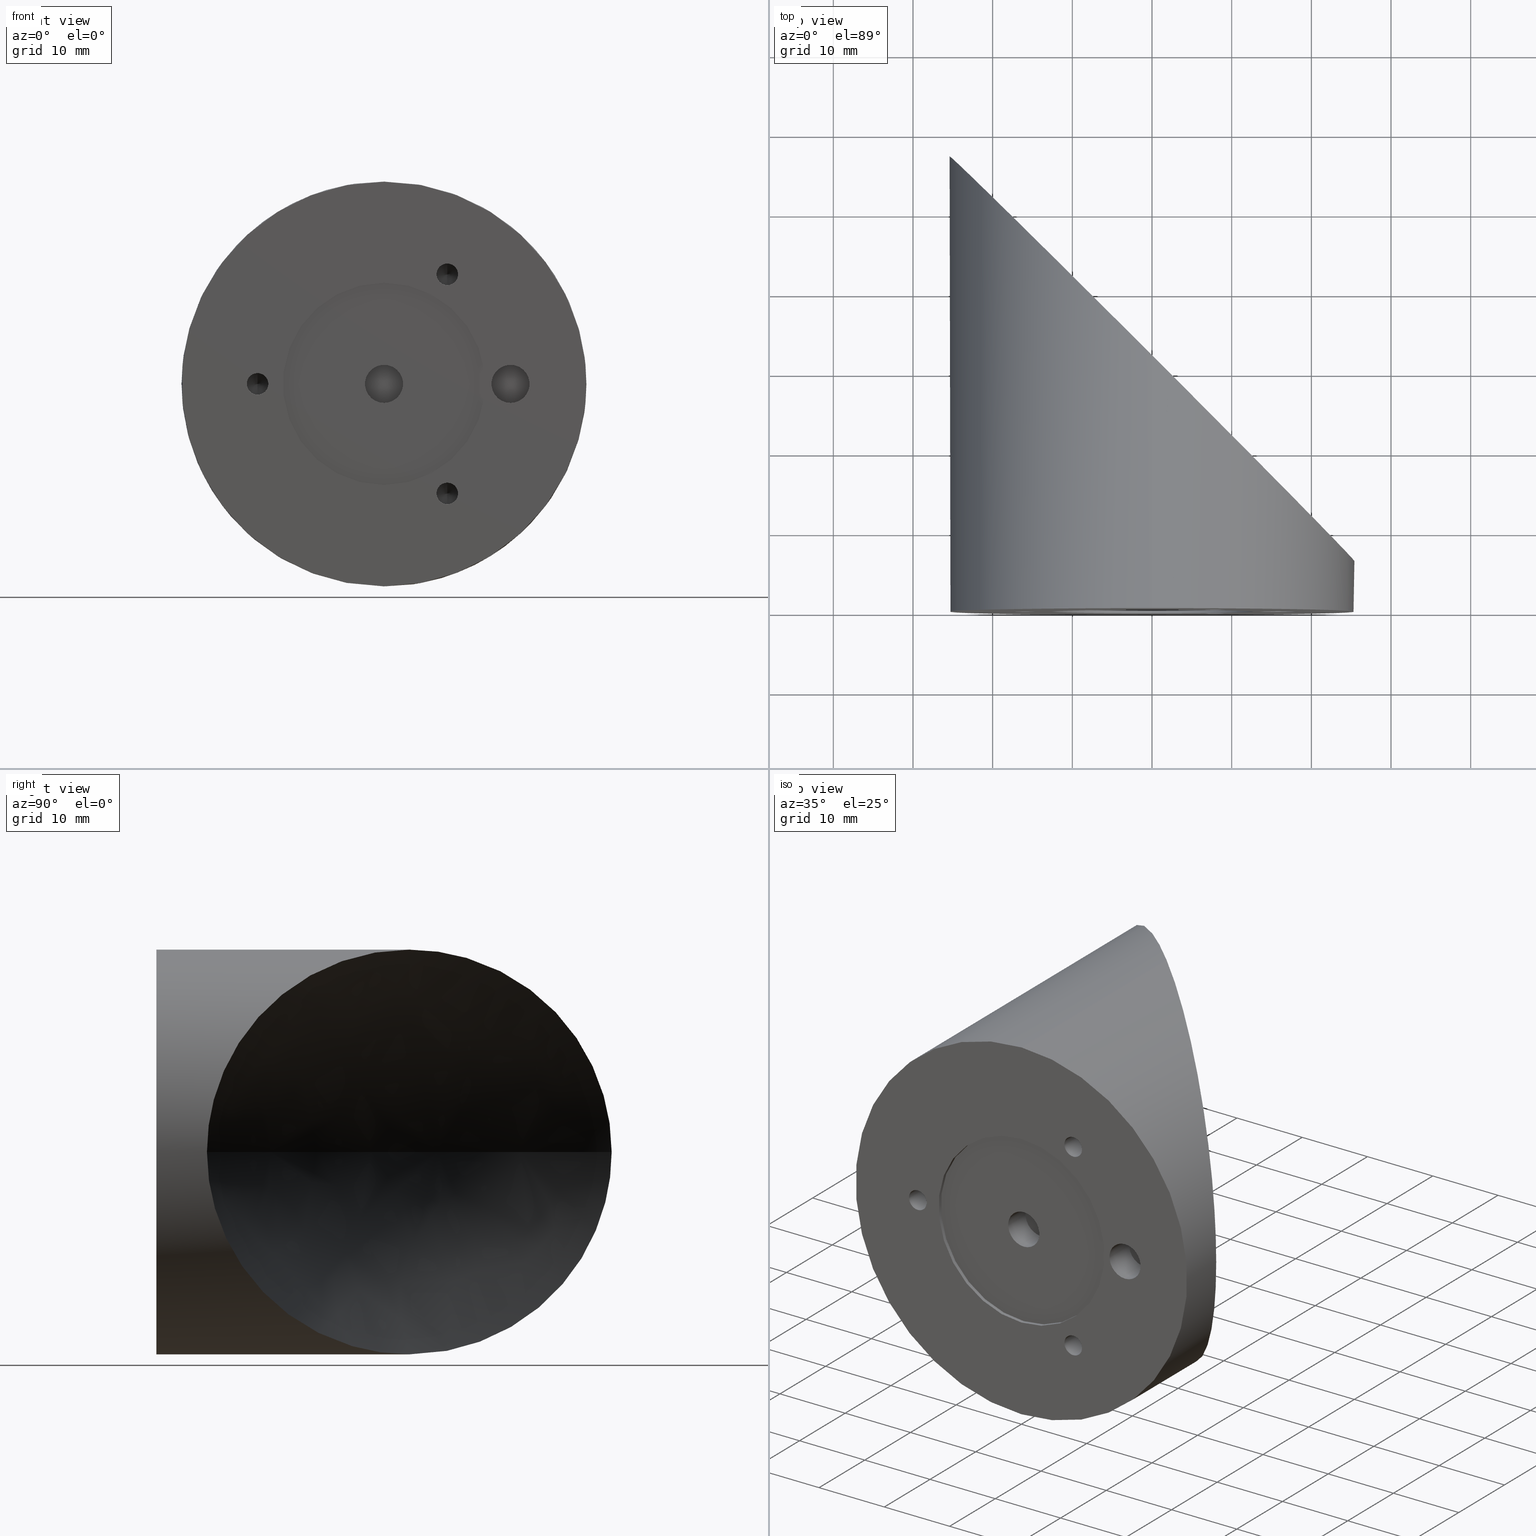
[diagram: canonical four-view strip — front | top / right | iso, engineering-drawing reading convention]
A machine part, canonical four-view strip (front | top / right | iso — engineering-drawing reading convention). The complete STEP part file that produces these views, byte-faithful:
ISO-10303-21;
HEADER;
FILE_DESCRIPTION (( 'STEP AP203' ),
    '1' );
FILE_NAME ('�50_36594.step',
    '2019-04-24T20:59:42',
    ( '' ),
    ( '' ),
    'SwSTEP 2.0',
    'SolidWorks 2018',
    '' );
FILE_SCHEMA (( 'CONFIG_CONTROL_DESIGN' ));
ENDSEC;

DATA;
#1 = DIRECTION ( 'NONE',  ( -0.0000000000000000000, -1.000000000000000000, -0.0000000000000000000 ) ) ;
#2 = DIRECTION ( 'NONE',  ( -0.0000000000000000000, -1.000000000000000000, -0.0000000000000000000 ) ) ;
#3 = CARTESIAN_POINT ( 'NONE',  ( 25.40000000000139124, 6.350000000004712319, -1.007793445402402011 ) ) ;
#4 = CARTESIAN_POINT ( 'NONE',  ( 23.11608779368936339, 8.633912206318735016, 10.53705452664367748 ) ) ;
#5 = LINE ( 'NONE', #859, #122 ) ;
#6 = FACE_BOUND ( 'NONE', #435, .T. ) ;
#7 = CARTESIAN_POINT ( 'NONE',  ( 7.107514868009670472, 24.64248513201214763, -24.42891655262617334 ) ) ;
#8 = ORIENTED_EDGE ( 'NONE', *, *, #633, .T. ) ;
#9 = CARTESIAN_POINT ( 'NONE',  ( -24.91912955028689680, 56.66912955033638610, 5.016703429672753067 ) ) ;
#10 = DIRECTION ( 'NONE',  ( 0.0000000000000000000, 0.0000000000000000000, -1.000000000000000000 ) ) ;
#11 = DIRECTION ( 'NONE',  ( 0.0000000000000000000, 1.000000000000000000, 0.0000000000000000000 ) ) ;
#12 = B_SPLINE_CURVE_WITH_KNOTS ( 'NONE', 3,
 ( #603, #735, #359, #289, #422, #696, #9, #504, #90, #510, #171, #314, #631, #231, #701, #706, #307, #768, #840, #522, #109, #585, #453, #534, #127, #601, #829, #491, #677, #616, #686, #560 ),
 .UNSPECIFIED., .F., .F.,
 ( 4, 2, 2, 2, 2, 2, 2, 2, 2, 2, 2, 2, 2, 2, 2, 4 ),
 ( 0.04810272725895906737, 0.04960341340593291820, 0.05110409955290677597, 0.05410547184685447764, 0.05560615799382832847, 0.05710684414080217930, 0.06010821643474988096, 0.06160890258172372486, 0.06310958872869756875, 0.06611096102264527041, 0.07211370561054067374, 0.07811645019843607707, 0.08411919478633148040, 0.08712056708027918206, 0.09012193937422688372, 0.09612468396212230093 ),
 .UNSPECIFIED. ) ;
#13 = AXIS2_PLACEMENT_3D ( 'NONE', #396, #594, #115 ) ;
#14 = DIRECTION ( 'NONE',  ( -0.0000000000000000000, -1.000000000000000000, -0.0000000000000000000 ) ) ;
#15 =( GEOMETRIC_REPRESENTATION_CONTEXT ( 3 ) GLOBAL_UNCERTAINTY_ASSIGNED_CONTEXT ( ( #607 ) ) GLOBAL_UNIT_ASSIGNED_CONTEXT ( ( #452, #104, #584 ) ) REPRESENTATION_CONTEXT ( 'NONE', 'WORKASPACE' ) );
#16 = CARTESIAN_POINT ( 'NONE',  ( -15.87500000000000000, 0.0000000000000000000, -1.352549999999999253 ) ) ;
#17 = DIRECTION ( 'NONE',  ( -0.0000000000000000000, -1.000000000000000000, -0.0000000000000000000 ) ) ;
#18 = DIRECTION ( 'NONE',  ( -0.0000000000000000000, -1.000000000000000000, -0.0000000000000000000 ) ) ;
#19 = CARTESIAN_POINT ( 'NONE',  ( -19.30359263965397076, 51.05359263969897654, -16.51397534887710705 ) ) ;
#20 = CARTESIAN_POINT ( 'NONE',  ( 2.867070042871639135, 28.88292995715369216, -25.24789856614431116 ) ) ;
#21 = FACE_OUTER_BOUND ( 'NONE', #892, .T. ) ;
#22 = CARTESIAN_POINT ( 'NONE',  ( -1.517883041479706208E-13, 18.89668560001696918, -2.373101715136272105E-12 ) ) ;
#23 = CARTESIAN_POINT ( 'NONE',  ( -25.39999999999913527, 57.15000000004933156, -3.778634764336981084E-12 ) ) ;
#24 = EDGE_CURVE ( 'NONE', #500, #286, #52, .T. ) ;
#25 = APPROVAL_STATUS ( 'not_yet_approved' ) ;
#26 = CIRCLE ( 'NONE', #413, 2.387499999999999734 ) ;
#27 = CARTESIAN_POINT ( 'NONE',  ( 26.88418308424549963, 6.198514400004518698, -8.832095794920979515 ) ) ;
#28 = APPROVAL_STATUS ( 'not_yet_approved' ) ;
#29 = APPROVAL ( #25, 'UNSPECIFIED' ) ;
#30 = CARTESIAN_POINT ( 'NONE',  ( 7.937499999999965361, 5.700000000000000178, 12.39560328507798737 ) ) ;
#31 = PERSON_AND_ORGANIZATION_ROLE ( 'creator' ) ;
#32 = AXIS2_PLACEMENT_3D ( 'NONE', #346, #665, #139 ) ;
#33 = CARTESIAN_POINT ( 'NONE',  ( 15.87500000000000000, 7.654042494671999858E-19, 0.0000000000000000000 ) ) ;
#34 = APPROVAL_PERSON_ORGANIZATION ( #132, #29, #186 ) ;
#35 = DIRECTION ( 'NONE',  ( -0.0000000000000000000, -1.000000000000000000, -0.0000000000000000000 ) ) ;
#36 = CARTESIAN_POINT ( 'NONE',  ( -4.343747583845909616E-12, 31.75000000003258549, 25.39999999999973568 ) ) ;
#37 = DIRECTION ( 'NONE',  ( -0.0000000000000000000, -1.000000000000000000, -0.0000000000000000000 ) ) ;
#38 = ORIENTED_EDGE ( 'NONE', *, *, #161, .T. ) ;
#39 = DIRECTION ( 'NONE',  ( -0.0000000000000000000, -1.000000000000000000, -0.0000000000000000000 ) ) ;
#40 = CLOSED_SHELL ( 'NONE', ( #216, #547, #46, #602, #412, #361, #402, #749, #418, #357, #344, #429, #138, #210, #220, #553, #83, #824, #63, #619, #153, #612, #615, #145, #662, #408 ) ) ;
#41 = LOCAL_TIME ( 16, 59, 42.00000000000000000, #240 ) ;
#42 = CIRCLE ( 'NONE', #457, 1.352549999999999253 ) ;
#43 = ORIENTED_EDGE ( 'NONE', *, *, #190, .F. ) ;
#44 = CARTESIAN_POINT ( 'NONE',  ( 18.75366693860043554, 12.99633306141087985, 17.21739479121827898 ) ) ;
#45 = ORGANIZATION ( 'UNSPECIFIED', 'UNSPECIFIED', '' ) ;
#46 = ADVANCED_FACE ( 'NONE', ( #272 ), #403, .F. ) ;
#47 = CIRCLE ( 'NONE', #799, 1.352549999999999253 ) ;
#48 = ORIENTED_EDGE ( 'NONE', *, *, #398, .T. ) ;
#49 = ORIENTED_EDGE ( 'NONE', *, *, #202, .T. ) ;
#50 = DIRECTION ( 'NONE',  ( 0.0000000000000000000, 0.0000000000000000000, -1.000000000000000000 ) ) ;
#51 = FACE_OUTER_BOUND ( 'NONE', #462, .T. ) ;
#52 = LINE ( 'NONE', #478, #646 ) ;
#53 = DIRECTION ( 'NONE',  ( 0.0000000000000000000, 0.0000000000000000000, -1.000000000000000000 ) ) ;
#54 = EDGE_LOOP ( 'NONE', ( #567, #173, #468, #655 ) ) ;
#55 = VECTOR ( 'NONE', #157, 1000.000000000000000 ) ;
#56 = CARTESIAN_POINT ( 'NONE',  ( 2.923844232964305902E-16, 0.5080000000000000071, 2.387499999999999734 ) ) ;
#57 = DIRECTION ( 'NONE',  ( -0.0000000000000000000, -1.000000000000000000, -0.0000000000000000000 ) ) ;
#58 = ORIENTED_EDGE ( 'NONE', *, *, #464, .T. ) ;
#59 = ORIENTED_EDGE ( 'NONE', *, *, #744, .T. ) ;
#60 = ORIENTED_EDGE ( 'NONE', *, *, #324, .F. ) ;
#61 = DIRECTION ( 'NONE',  ( 0.0000000000000000000, 0.0000000000000000000, -1.000000000000000000 ) ) ;
#62 = CARTESIAN_POINT ( 'NONE',  ( 7.937499999999965361, 0.0000000000000000000, 13.74815328507798640 ) ) ;
#63 = ADVANCED_FACE ( 'NONE', ( #591 ), #112, .F. ) ;
#64 = CARTESIAN_POINT ( 'NONE',  ( 3.110602869834276865E-15, 0.0000000000000000000, 25.39999999999999858 ) ) ;
#65 = CIRCLE ( 'NONE', #671, 1.352549999999999253 ) ;
#66 = CARTESIAN_POINT ( 'NONE',  ( 24.80328668270944092, 6.946713317296391743, -5.495410143702742722 ) ) ;
#67 = DIRECTION ( 'NONE',  ( 0.0000000000000000000, 0.0000000000000000000, 1.000000000000000000 ) ) ;
#68 = SHAPE_DEFINITION_REPRESENTATION ( #858, #205 ) ;
#69 = EDGE_CURVE ( 'NONE', #303, #342, #370, .T. ) ;
#70 = LINE ( 'NONE', #488, #299 ) ;
#71 = DIRECTION ( 'NONE',  ( -0.0000000000000000000, -1.000000000000000000, -0.0000000000000000000 ) ) ;
#72 = ORIENTED_EDGE ( 'NONE', *, *, #679, .T. ) ;
#73 = DIRECTION ( 'NONE',  ( 0.0000000000000000000, 0.0000000000000000000, -1.000000000000000000 ) ) ;
#74 = AXIS2_PLACEMENT_3D ( 'NONE', #172, #308, #697 ) ;
#75 = CARTESIAN_POINT ( 'NONE',  ( 15.87500000000000000, 7.654042494671999858E-19, 0.0000000000000000000 ) ) ;
#76 = AXIS2_PLACEMENT_3D ( 'NONE', #75, #223, #690 ) ;
#77 = CARTESIAN_POINT ( 'NONE',  ( 0.0000000000000000000, 0.5080000000000000071, 0.0000000000000000000 ) ) ;
#78 = PRODUCT_RELATED_PRODUCT_CATEGORY ( 'detail', '', ( #234 ) ) ;
#79 = LINE ( 'NONE', #175, #598 ) ;
#80 = CARTESIAN_POINT ( 'NONE',  ( 23.49180749685926983, 8.258192503148499952, 9.670471214657705872 ) ) ;
#81 = FACE_BOUND ( 'NONE', #745, .T. ) ;
#82 = COORDINATED_UNIVERSAL_TIME_OFFSET ( 5, 0, .BEHIND. ) ;
#83 = ADVANCED_FACE ( 'NONE', ( #326 ), #191, .F. ) ;
#84 = AXIS2_PLACEMENT_3D ( 'NONE', #743, #199, #663 ) ;
#85 = CARTESIAN_POINT ( 'NONE',  ( 0.0000000000000000000, 90.23632920900077181, -25.39999999999999858 ) ) ;
#86 = VECTOR ( 'NONE', #766, 1000.000000000000000 ) ;
#87 = DIRECTION ( 'NONE',  ( -0.0000000000000000000, -1.000000000000000000, -0.0000000000000000000 ) ) ;
#88 = EDGE_CURVE ( 'NONE', #105, #335, #228, .T. ) ;
#89 = CARTESIAN_POINT ( 'NONE',  ( 7.937499999999963585, 6.512694030265726575, 13.74815328507798640 ) ) ;
#90 = CARTESIAN_POINT ( 'NONE',  ( -24.44232522460061929, 56.19232522465010504, 6.926193841207946456 ) ) ;
#91 = CARTESIAN_POINT ( 'NONE',  ( 3.110602869834276865E-15, 90.23632920900077181, 25.39999999999999858 ) ) ;
#92 = CARTESIAN_POINT ( 'NONE',  ( 7.937499999999965361, -4.588139233005562251E-17, -13.74815328507798640 ) ) ;
#93 = B_SPLINE_CURVE_WITH_KNOTS ( 'NONE', 3,
 ( #773, #379, #797, #866, #260, #177, #596, #99, #383, #196, #712, #264, #732, #323, #639, #19, #529, #445, #341, #660, #517, #180, #842, #777, #465, #336, #121, #514, #320, #600, #848, #23 ),
 .UNSPECIFIED., .F., .F.,
 ( 4, 2, 2, 2, 2, 2, 2, 2, 2, 2, 2, 2, 2, 2, 2, 4 ),
 ( 0.0000000000000000000, 0.006012840907369873880, 0.01202568181473974776, 0.01503210226842468383, 0.01803852272210962338, 0.02405136362947949552, 0.02705778408316443853, 0.02856099431000691871, 0.03006420453684939542, 0.03607704544421930920, 0.03758025567106178244, 0.03908346589790425568, 0.04208988635158919522, 0.04359309657843166153, 0.04509630680527412783, 0.04810272725895906737 ),
 .UNSPECIFIED. ) ;
#94 = CARTESIAN_POINT ( 'NONE',  ( 18.76394866295997588, 12.98605133705183690, -17.20628069571811380 ) ) ;
#95 = APPROVAL_DATE_TIME ( #355, #407 ) ;
#96 =( BOUNDED_SURFACE ( )  B_SPLINE_SURFACE ( 2, 3, ( 
 ( #179, #707, #841, #647 ),
 ( #716, #325, #847, #315 ),
 ( #103, #98, #27, #252 ) ),
 .UNSPECIFIED., .F., .F., .T. ) 
 B_SPLINE_SURFACE_WITH_KNOTS ( ( 3, 3 ),
 ( 4, 4 ),
 ( 0.4962049995256900825, 0.4987551592069661144 ),
 ( 0.0000000000000000000, 1.000000000000000000 ),
 .UNSPECIFIED. ) 
 GEOMETRIC_REPRESENTATION_ITEM ( )  RATIONAL_B_SPLINE_SURFACE ( (
 ( 1.000000000000000000, 0.9766414868450933318, 0.9766414868450933318, 1.000000000000000000),
 ( 1.000000000000000000, 0.9766414868450933318, 0.9766414868450933318, 1.000000000000000000),
 ( 1.000000000000000000, 0.9766414868450933318, 0.9766414868450933318, 1.000000000000000000) ) ) 
 REPRESENTATION_ITEM ( '' )  SURFACE ( )  );
#97 = VERTEX_POINT ( 'NONE', #628 ) ;
#98 = CARTESIAN_POINT ( 'NONE',  ( 25.70479999999712462, 6.198514400004518698, -4.494791634592843366 ) ) ;
#99 = CARTESIAN_POINT ( 'NONE',  ( -11.18977277295006978, 42.93977277298796480, -22.81467757225064119 ) ) ;
#100 = CARTESIAN_POINT ( 'NONE',  ( 11.21135902793158223, 20.53864097208624884, -22.84290149297057937 ) ) ;
#101 = CYLINDRICAL_SURFACE ( 'NONE', #587, 2.387500000000000622 ) ;
#102 = AXIS2_PLACEMENT_3D ( 'NONE', #334, #108, #645 ) ;
#103 = CARTESIAN_POINT ( 'NONE',  ( 25.70480000000121024, 6.198514400004517810, 2.282395143993144442E-11 ) ) ;
#104 =( NAMED_UNIT ( * ) PLANE_ANGLE_UNIT ( ) SI_UNIT ( $, .RADIAN. ) );
#105 = VERTEX_POINT ( 'NONE', #230 ) ;
#106 = CARTESIAN_POINT ( 'NONE',  ( 7.937499999999965361, 5.700000000000000178, 13.74815328507798640 ) ) ;
#107 = AXIS2_PLACEMENT_3D ( 'NONE', #826, #309, #295 ) ;
#108 = DIRECTION ( 'NONE',  ( -0.0000000000000000000, -1.000000000000000000, -0.0000000000000000000 ) ) ;
#109 = CARTESIAN_POINT ( 'NONE',  ( -17.60734394690690507, 49.35734394695076332, 18.37816237363596272 ) ) ;
#110 = DIRECTION ( 'NONE',  ( 0.0000000000000000000, -0.0000000000000000000, 1.000000000000000000 ) ) ;
#111 = FACE_OUTER_BOUND ( 'NONE', #583, .T. ) ;
#112 = CONICAL_SURFACE ( 'NONE', #248, 1.352549999999999253, 1.029744258676653645 ) ;
#113 = VERTEX_POINT ( 'NONE', #632 ) ;
#114 = APPROVAL_ROLE ( '' ) ;
#115 = DIRECTION ( 'NONE',  ( 0.0000000000000000000, 0.0000000000000000000, -1.000000000000000000 ) ) ;
#116 = FACE_OUTER_BOUND ( 'NONE', #820, .T. ) ;
#117 = ORIENTED_EDGE ( 'NONE', *, *, #88, .T. ) ;
#118 = CARTESIAN_POINT ( 'NONE',  ( 7.937499999999965361, 5.700000000000000178, 15.10070328507798543 ) ) ;
#119 = ORIENTED_EDGE ( 'NONE', *, *, #464, .F. ) ;
#120 = EDGE_LOOP ( 'NONE', ( #257, #520, #236 ) ) ;
#121 = CARTESIAN_POINT ( 'NONE',  ( -24.90868563480826836, 56.65868563485760490, -4.997050904854477338 ) ) ;
#122 = VECTOR ( 'NONE', #524, 1000.000000000000000 ) ;
#123 = VERTEX_POINT ( 'NONE', #692 ) ;
#124 = EDGE_CURVE ( 'NONE', #490, #489, #805, .T. ) ;
#125 = CARTESIAN_POINT ( 'NONE',  ( 7.937499999999965361, 0.0000000000000000000, -13.74815328507798640 ) ) ;
#126 = VECTOR ( 'NONE', #14, 1000.000000000000000 ) ;
#127 = CARTESIAN_POINT ( 'NONE',  ( -9.862800616184090430, 41.61280061622073134, 23.45310829498336957 ) ) ;
#128 = DIRECTION ( 'NONE',  ( -0.0000000000000000000, -1.000000000000000000, -0.0000000000000000000 ) ) ;
#129 = EDGE_CURVE ( 'NONE', #303, #667, #785, .T. ) ;
#130 = DIRECTION ( 'NONE',  ( -0.0000000000000000000, -1.000000000000000000, -0.0000000000000000000 ) ) ;
#131 = CARTESIAN_POINT ( 'NONE',  ( 2.858770735336378710, 28.89122926468965247, 25.24882967334772843 ) ) ;
#132 = PERSON_AND_ORGANIZATION ( #843, #45 ) ;
#133 = ORIENTED_EDGE ( 'NONE', *, *, #363, .F. ) ;
#134 = ORIENTED_EDGE ( 'NONE', *, *, #181, .T. ) ;
#135 = DIRECTION ( 'NONE',  ( -0.0000000000000000000, -1.000000000000000000, -0.0000000000000000000 ) ) ;
#136 = DIRECTION ( 'NONE',  ( -0.0000000000000000000, -1.000000000000000000, -0.0000000000000000000 ) ) ;
#137 = VECTOR ( 'NONE', #135, 1000.000000000000000 ) ;
#138 = ADVANCED_FACE ( 'NONE', ( #81, #6, #699, #886, #144, #155 ), #300, .F. ) ;
#139 = DIRECTION ( 'NONE',  ( 0.0000000000000000000, 0.0000000000000000000, -1.000000000000000000 ) ) ;
#140 = ORIENTED_EDGE ( 'NONE', *, *, #297, .F. ) ;
#141 = ORIENTED_EDGE ( 'NONE', *, *, #283, .F. ) ;
#142 = ORIENTED_EDGE ( 'NONE', *, *, #633, .F. ) ;
#143 = EDGE_CURVE ( 'NONE', #454, #746, #65, .T. ) ;
#144 = FACE_BOUND ( 'NONE', #182, .T. ) ;
#145 = ADVANCED_FACE ( 'NONE', ( #698 ), #527, .F. ) ;
#146 = CARTESIAN_POINT ( 'NONE',  ( 7.937499999999965361, 0.0000000000000000000, 13.74815328507798640 ) ) ;
#147 = CIRCLE ( 'NONE', #657, 1.352549999999999253 ) ;
#148 = CALENDAR_DATE ( 2019, 24, 4 ) ;
#149 = VERTEX_POINT ( 'NONE', #232 ) ;
#150 = DIRECTION ( 'NONE',  ( -0.0000000000000000000, -1.000000000000000000, -0.0000000000000000000 ) ) ;
#151 = FACE_OUTER_BOUND ( 'NONE', #790, .T. ) ;
#152 = VERTEX_POINT ( 'NONE', #304 ) ;
#153 = ADVANCED_FACE ( 'NONE', ( #724 ), #189, .F. ) ;
#154 = CC_DESIGN_PERSON_AND_ORGANIZATION_ASSIGNMENT ( #227, #780, ( #862 ) ) ;
#155 = FACE_OUTER_BOUND ( 'NONE', #693, .T. ) ;
#156 = DIRECTION ( 'NONE',  ( 0.0000000000000000000, -0.0000000000000000000, -1.000000000000000000 ) ) ;
#157 = DIRECTION ( 'NONE',  ( 0.0000000000000000000, -0.5150380749100542666, -0.8571673007021122226 ) ) ;
#158 = ORIENTED_EDGE ( 'NONE', *, *, #161, .F. ) ;
#159 = CARTESIAN_POINT ( 'NONE',  ( 24.17195477904778755, 7.578045220958599337, -7.861663276391449351 ) ) ;
#160 = EDGE_LOOP ( 'NONE', ( #141, #410, #350 ) ) ;
#161 = EDGE_CURVE ( 'NONE', #123, #541, #634, .T. ) ;
#162 = VECTOR ( 'NONE', #767, 1000.000000000000000 ) ;
#163 = DIRECTION ( 'NONE',  ( 0.0000000000000000000, 0.0000000000000000000, -1.000000000000000000 ) ) ;
#164 = VERTEX_POINT ( 'NONE', #495 ) ;
#165 = CARTESIAN_POINT ( 'NONE',  ( 24.45451196593075593, 7.295488034076068828, 6.935761289269316343 ) ) ;
#166 = CARTESIAN_POINT ( 'NONE',  ( -2.642881778843148241E-15, 0.0000000000000000000, -12.69999999999999929 ) ) ;
#167 = ORIENTED_EDGE ( 'NONE', *, *, #143, .T. ) ;
#168 = DIRECTION ( 'NONE',  ( 0.0000000000000000000, 0.0000000000000000000, -1.000000000000000000 ) ) ;
#169 = CARTESIAN_POINT ( 'NONE',  ( 7.937499999999965361, -4.588139233005562251E-17, -15.10070328507798543 ) ) ;
#170 = CARTESIAN_POINT ( 'NONE',  ( -15.87500000000000000, 5.700000000000000178, -1.352549999999999253 ) ) ;
#171 = CARTESIAN_POINT ( 'NONE',  ( -24.00169820278755139, 55.75169820283742439, 8.325231285725502417 ) ) ;
#172 = CARTESIAN_POINT ( 'NONE',  ( 0.0000000000000000000, 0.0000000000000000000, 0.0000000000000000000 ) ) ;
#173 = ORIENTED_EDGE ( 'NONE', *, *, #88, .F. ) ;
#174 =( BOUNDED_SURFACE ( )  B_SPLINE_SURFACE ( 2, 3, ( 
 ( #851, #374, #711, #319 ),
 ( #511, #838, #772, #22 ),
 ( #518, #438, #382, #635 ) ),
 .UNSPECIFIED., .F., .F., .F. ) 
 B_SPLINE_SURFACE_WITH_KNOTS ( ( 3, 3 ),
 ( 4, 4 ),
 ( 0.4962049995256900825, 0.4987551592069660034 ),
 ( 0.0000000000000000000, 1.000000000000000000 ),
 .UNSPECIFIED. ) 
 GEOMETRIC_REPRESENTATION_ITEM ( )  RATIONAL_B_SPLINE_SURFACE ( (
 ( 1.000000000000000000, 0.9761968358346008179, 0.9761968358346008179, 1.000000000000000000),
 ( 1.000000000000000000, 0.9761968358346008179, 0.9761968358346008179, 1.000000000000000000),
 ( 1.000000000000000000, 0.9761968358346008179, 0.9761968358346008179, 1.000000000000000000) ) ) 
 REPRESENTATION_ITEM ( '' )  SURFACE ( )  );
#175 = CARTESIAN_POINT ( 'NONE',  ( 2.923844232964305902E-16, 0.0000000000000000000, 2.387499999999999734 ) ) ;
#176 = EDGE_LOOP ( 'NONE', ( #595, #274, #322, #43 ) ) ;
#177 = CARTESIAN_POINT ( 'NONE',  ( -9.140824242700020363, 40.89082424273583882, -23.70949247268080740 ) ) ;
#178 = ORIENTED_EDGE ( 'NONE', *, *, #190, .T. ) ;
#179 = CARTESIAN_POINT ( 'NONE',  ( -25.70479999999975007, 57.60811440004953710, 6.958071026019785905E-11 ) ) ;
#180 = CARTESIAN_POINT ( 'NONE',  ( -23.50161380681079137, 55.25161380685845813, -9.646627374330739357 ) ) ;
#181 = EDGE_CURVE ( 'NONE', #728, #718, #624, .T. ) ;
#182 = EDGE_LOOP ( 'NONE', ( #715, #60 ) ) ;
#183 = CIRCLE ( 'NONE', #215, 1.352549999999999253 ) ;
#184 = FACE_OUTER_BOUND ( 'NONE', #883, .T. ) ;
#185 = ORIENTED_EDGE ( 'NONE', *, *, #398, .F. ) ;
#186 = APPROVAL_ROLE ( '' ) ;
#187 = DIRECTION ( 'NONE',  ( 0.0000000000000000000, 0.0000000000000000000, -1.000000000000000000 ) ) ;
#188 = DATE_AND_TIME ( #574, #41 ) ;
#189 = CONICAL_SURFACE ( 'NONE', #474, 1.352549999999999253, 1.029744258676653645 ) ;
#190 = EDGE_CURVE ( 'NONE', #489, #728, #565, .T. ) ;
#191 = CONICAL_SURFACE ( 'NONE', #472, 1.352549999999999253, 1.029744258676654312 ) ;
#192 = CARTESIAN_POINT ( 'NONE',  ( -25.39999999999913527, 57.15000000004933156, -3.778634764336981084E-12 ) ) ;
#193 = CARTESIAN_POINT ( 'NONE',  ( 7.937499999999965361, 5.700000000000000178, 13.74815328507798640 ) ) ;
#194 = ORIENTED_EDGE ( 'NONE', *, *, #853, .F. ) ;
#195 = DIRECTION ( 'NONE',  ( 0.0000000000000000000, 1.000000000000000000, 0.0000000000000000000 ) ) ;
#196 = CARTESIAN_POINT ( 'NONE',  ( -13.86413127422606273, 45.61413127426556713, -21.33738733701724755 ) ) ;
#197 = LOCAL_TIME ( 16, 59, 42.00000000000000000, #564 ) ;
#198 = CYLINDRICAL_SURFACE ( 'NONE', #261, 2.387499999999999734 ) ;
#199 = DIRECTION ( 'NONE',  ( -0.0000000000000000000, -1.000000000000000000, -0.0000000000000000000 ) ) ;
#200 = LINE ( 'NONE', #170, #55 ) ;
#201 = ORIENTED_EDGE ( 'NONE', *, *, #415, .F. ) ;
#202 = EDGE_CURVE ( 'NONE', #286, #212, #147, .T. ) ;
#203 = ORIENTED_EDGE ( 'NONE', *, *, #694, .F. ) ;
#204 = CARTESIAN_POINT ( 'NONE',  ( 12.84298988541444864, 18.90701011460226511, 21.91716930012565356 ) ) ;
#205 = ADVANCED_BREP_SHAPE_REPRESENTATION ( '+50_36594', ( #807, #813 ), #15 ) ;
#206 = DIRECTION ( 'NONE',  ( -0.0000000000000000000, -1.000000000000000000, -0.0000000000000000000 ) ) ;
#207 = DIRECTION ( 'NONE',  ( -0.0000000000000000000, -1.000000000000000000, -0.0000000000000000000 ) ) ;
#208 = CARTESIAN_POINT ( 'NONE',  ( -15.87500000000000000, 5.700000000000000178, 0.0000000000000000000 ) ) ;
#209 = CONICAL_SURFACE ( 'NONE', #423, 1.352549999999999253, 1.029744258676653645 ) ;
#210 = ADVANCED_FACE ( 'NONE', ( #111 ), #174, .T. ) ;
#211 = CIRCLE ( 'NONE', #102, 1.352549999999999253 ) ;
#212 = VERTEX_POINT ( 'NONE', #30 ) ;
#213 = AXIS2_PLACEMENT_3D ( 'NONE', #33, #528, #456 ) ;
#214 = ORIENTED_EDGE ( 'NONE', *, *, #181, .F. ) ;
#215 = AXIS2_PLACEMENT_3D ( 'NONE', #535, #136, #53 ) ;
#216 = ADVANCED_FACE ( 'NONE', ( #837 ), #96, .T. ) ;
#217 = CARTESIAN_POINT ( 'NONE',  ( 23.67293359248889217, 8.077066407517943247, -9.218703919396871171 ) ) ;
#218 = VECTOR ( 'NONE', #513, 1000.000000000000000 ) ;
#219 = EDGE_LOOP ( 'NONE', ( #880, #537, #72, #203 ) ) ;
#220 = ADVANCED_FACE ( 'NONE', ( #271 ), #243, .F. ) ;
#221 = FACE_OUTER_BOUND ( 'NONE', #558, .T. ) ;
#222 = EDGE_LOOP ( 'NONE', ( #194, #277, #867 ) ) ;
#223 = DIRECTION ( 'NONE',  ( -0.0000000000000000000, -1.000000000000000000, -0.0000000000000000000 ) ) ;
#224 = CARTESIAN_POINT ( 'NONE',  ( 25.39999999999953673, 6.350000000006544632, 1.008915357888921172 ) ) ;
#225 = CARTESIAN_POINT ( 'NONE',  ( 25.40000000000046754, 6.350000000005628920, 2.310600058712741191E-11 ) ) ;
#226 = CARTESIAN_POINT ( 'NONE',  ( 22.91856478368881511, 8.831435216319798442, 10.95957008676527700 ) ) ;
#227 = PERSON_AND_ORGANIZATION ( #843, #45 ) ;
#228 = CIRCLE ( 'NONE', #291, 12.69999999999999929 ) ;
#229 = ORIENTED_EDGE ( 'NONE', *, *, #339, .F. ) ;
#230 = CARTESIAN_POINT ( 'NONE',  ( -2.642881778843148241E-15, 0.5080000000000000071, -12.69999999999999929 ) ) ;
#231 = CARTESIAN_POINT ( 'NONE',  ( -22.50743737487468366, 54.25743737492236107, 11.78087464265472128 ) ) ;
#232 = CARTESIAN_POINT ( 'NONE',  ( -25.39999999999913527, 57.15000000004933156, -3.778634764336981084E-12 ) ) ;
#233 = CARTESIAN_POINT ( 'NONE',  ( -15.87500000000000000, -4.588139233005562251E-17, -1.352549999999999253 ) ) ;
#234 = PRODUCT ( '�50_36594', '�50_36594', '', ( #247 ) ) ;
#235 = ORIENTED_EDGE ( 'NONE', *, *, #143, .F. ) ;
#236 = ORIENTED_EDGE ( 'NONE', *, *, #818, .T. ) ;
#237 = DIRECTION ( 'NONE',  ( -0.0000000000000000000, -1.000000000000000000, -0.0000000000000000000 ) ) ;
#238 = EDGE_CURVE ( 'NONE', #97, #691, #654, .T. ) ;
#239 = CARTESIAN_POINT ( 'NONE',  ( 0.7170981315374379550, 31.03290186848983367, -25.39999999999984581 ) ) ;
#240 = COORDINATED_UNIVERSAL_TIME_OFFSET ( 5, 0, .BEHIND. ) ;
#241 = LINE ( 'NONE', #266, #391 ) ;
#242 = CARTESIAN_POINT ( 'NONE',  ( 20.37567222707012604, 11.37432777293942365, -15.17182044832020971 ) ) ;
#243 = PLANE ( 'NONE',  #250 ) ;
#244 = DIRECTION ( 'NONE',  ( 0.0000000000000000000, -1.000000000000000000, 0.0000000000000000000 ) ) ;
#245 = VECTOR ( 'NONE', #436, 1000.000000000000000 ) ;
#246 = ORIENTED_EDGE ( 'NONE', *, *, #430, .T. ) ;
#247 = MECHANICAL_CONTEXT ( 'NONE', #588, 'mechanical' ) ;
#248 = AXIS2_PLACEMENT_3D ( 'NONE', #661, #536, #808 ) ;
#249 = DIRECTION ( 'NONE',  ( 0.0000000000000000000, 0.0000000000000000000, -1.000000000000000000 ) ) ;
#250 = AXIS2_PLACEMENT_3D ( 'NONE', #573, #580, #110 ) ;
#251 = PERSON_AND_ORGANIZATION_ROLE ( 'design_supplier' ) ;
#252 = CARTESIAN_POINT ( 'NONE',  ( 29.16030334688205627, 6.198514400004517810, -12.70797355210402202 ) ) ;
#253 = EDGE_CURVE ( 'NONE', #97, #839, #79, .T. ) ;
#254 = APPLICATION_CONTEXT ( 'configuration controlled 3d designs of mechanical parts and assemblies' ) ;
#255 = DIRECTION ( 'NONE',  ( -0.0000000000000000000, -1.000000000000000000, -0.0000000000000000000 ) ) ;
#256 = CARTESIAN_POINT ( 'NONE',  ( -1.087580343926009808E-15, 0.5080000000000000071, 12.69999999999999929 ) ) ;
#257 = ORIENTED_EDGE ( 'NONE', *, *, #650, .F. ) ;
#258 = ORIENTED_EDGE ( 'NONE', *, *, #562, .F. ) ;
#259 = CARTESIAN_POINT ( 'NONE',  ( 25.40000000000046754, 6.350000000005628920, 2.310600058712741191E-11 ) ) ;
#260 = CARTESIAN_POINT ( 'NONE',  ( -7.072115939560654319, 38.82211593959468132, -24.43939403359847873 ) ) ;
#261 = AXIS2_PLACEMENT_3D ( 'NONE', #597, #656, #262 ) ;
#262 = DIRECTION ( 'NONE',  ( 0.0000000000000000000, 0.0000000000000000000, -1.000000000000000000 ) ) ;
#263 = CYLINDRICAL_SURFACE ( 'NONE', #502, 1.352549999999999253 ) ;
#264 = CARTESIAN_POINT ( 'NONE',  ( -16.98200230264385624, 48.73200230268696487, -18.90536610218035563 ) ) ;
#265 = CALENDAR_DATE ( 2019, 24, 4 ) ;
#266 = CARTESIAN_POINT ( 'NONE',  ( 7.937499999999965361, 0.0000000000000000000, -12.39560328507798737 ) ) ;
#267 = CARTESIAN_POINT ( 'NONE',  ( -15.87500000000000000, 0.0000000000000000000, 0.0000000000000000000 ) ) ;
#268 = CARTESIAN_POINT ( 'NONE',  ( 13.17241457464497500, 18.57758542537235869, 21.72089280077771178 ) ) ;
#269 = CYLINDRICAL_SURFACE ( 'NONE', #844, 1.352549999999999253 ) ;
#270 = EDGE_CURVE ( 'NONE', #691, #97, #293, .T. ) ;
#271 = FACE_OUTER_BOUND ( 'NONE', #796, .T. ) ;
#272 = FACE_OUTER_BOUND ( 'NONE', #582, .T. ) ;
#273 = CARTESIAN_POINT ( 'NONE',  ( 20.87945820684569398, 10.87054179316435487, 14.47070441000486340 ) ) ;
#274 = ORIENTED_EDGE ( 'NONE', *, *, #548, .T. ) ;
#275 = PERSON_AND_ORGANIZATION ( #843, #45 ) ;
#276 = DIRECTION ( 'NONE',  ( -0.0000000000000000000, -1.000000000000000000, -0.0000000000000000000 ) ) ;
#277 = ORIENTED_EDGE ( 'NONE', *, *, #650, .T. ) ;
#278 = DIRECTION ( 'NONE',  ( 0.0000000000000000000, 0.0000000000000000000, -1.000000000000000000 ) ) ;
#279 = CARTESIAN_POINT ( 'NONE',  ( 7.937499999999965361, 5.700000000000000178, -15.10070328507798543 ) ) ;
#280 = EDGE_CURVE ( 'NONE', #667, #519, #804, .T. ) ;
#281 = COORDINATED_UNIVERSAL_TIME_OFFSET ( 5, 0, .BEHIND. ) ;
#282 = LINE ( 'NONE', #390, #428 ) ;
#283 = EDGE_CURVE ( 'NONE', #856, #152, #814, .T. ) ;
#284 = ORIENTED_EDGE ( 'NONE', *, *, #818, .F. ) ;
#285 = CARTESIAN_POINT ( 'NONE',  ( 23.11892783636140081, 8.631072163646059892, -10.53081232286892543 ) ) ;
#286 = VERTEX_POINT ( 'NONE', #118 ) ;
#287 = CARTESIAN_POINT ( 'NONE',  ( 0.0000000000000000000, 0.0000000000000000000, 0.0000000000000000000 ) ) ;
#288 = CARTESIAN_POINT ( 'NONE',  ( -15.87500000000000000, 5.700000000000000178, -1.352549999999999253 ) ) ;
#289 = CARTESIAN_POINT ( 'NONE',  ( -25.32415586706389732, 57.07415586711366728, 2.026326229893380404 ) ) ;
#290 = DIRECTION ( 'NONE',  ( 0.0000000000000000000, 0.0000000000000000000, -1.000000000000000000 ) ) ;
#291 = AXIS2_PLACEMENT_3D ( 'NONE', #369, #831, #10 ) ;
#292 = AXIS2_PLACEMENT_3D ( 'NONE', #849, #448, #442 ) ;
#293 = CIRCLE ( 'NONE', #347, 2.387499999999999289 ) ;
#294 = CARTESIAN_POINT ( 'NONE',  ( 25.34003501376936285, 6.409964986235826778, 2.019679683148877469 ) ) ;
#295 = DIRECTION ( 'NONE',  ( 0.0000000000000000000, 0.0000000000000000000, 1.000000000000000000 ) ) ;
#296 = ORIENTED_EDGE ( 'NONE', *, *, #283, .T. ) ;
#297 = EDGE_CURVE ( 'NONE', #149, #342, #434, .T. ) ;
#298 = CARTESIAN_POINT ( 'NONE',  ( 24.45577271687576726, 7.294227283130367390, -6.931481260837111691 ) ) ;
#299 = VECTOR ( 'NONE', #17, 1000.000000000000000 ) ;
#300 = PLANE ( 'NONE',  #74 ) ;
#301 = CARTESIAN_POINT ( 'NONE',  ( -1.058094834463310631E-15, 4.319999999999995843, 0.0000000000000000000 ) ) ;
#302 = CARTESIAN_POINT ( 'NONE',  ( 15.77365983277582551, 15.97634016723826278, -19.92461959032602437 ) ) ;
#303 = VERTEX_POINT ( 'NONE', #36 ) ;
#304 = CARTESIAN_POINT ( 'NONE',  ( 7.937499999999965361, 5.700000000000000178, -12.39560328507798737 ) ) ;
#305 = ORIENTED_EDGE ( 'NONE', *, *, #525, .T. ) ;
#306 = DIRECTION ( 'NONE',  ( 0.0000000000000000000, 0.0000000000000000000, -1.000000000000000000 ) ) ;
#307 = CARTESIAN_POINT ( 'NONE',  ( -21.60348923600244575, 53.35348923604993843, 13.36597650318471864 ) ) ;
#308 = DIRECTION ( 'NONE',  ( 0.0000000000000000000, 1.000000000000000000, 0.0000000000000000000 ) ) ;
#309 = DIRECTION ( 'NONE',  ( 0.0000000000000000000, 1.000000000000000000, 0.0000000000000000000 ) ) ;
#310 = LOCAL_TIME ( 16, 59, 42.00000000000000000, #281 ) ;
#311 = AXIS2_PLACEMENT_3D ( 'NONE', #473, #206, #50 ) ;
#312 = CARTESIAN_POINT ( 'NONE',  ( -2.642881778843148241E-15, 0.0000000000000000000, 0.0000000000000000000 ) ) ;
#313 = EDGE_LOOP ( 'NONE', ( #433, #158, #400, #894 ) ) ;
#314 = CARTESIAN_POINT ( 'NONE',  ( -23.50350774278324195, 55.25350774283266730, 9.678279500985645711 ) ) ;
#315 = CARTESIAN_POINT ( 'NONE',  ( 6.994946046318468724, 18.89668560001528519, -25.72464281802520603 ) ) ;
#316 = CYLINDRICAL_SURFACE ( 'NONE', #741, 1.352549999999999253 ) ;
#317 = CARTESIAN_POINT ( 'NONE',  ( 15.87500000000000000, 4.320000000000000284, 2.387500000000000622 ) ) ;
#318 = CIRCLE ( 'NONE', #784, 12.69999999999999929 ) ;
#319 = CARTESIAN_POINT ( 'NONE',  ( -25.70479999999951204, 57.60811440004953710, -3.642919299551294898E-12 ) ) ;
#320 = CARTESIAN_POINT ( 'NONE',  ( -25.16133615854876027, 56.91133615859885708, -3.509876647023339125 ) ) ;
#321 = EDGE_LOOP ( 'NONE', ( #377, #822 ) ) ;
#322 = ORIENTED_EDGE ( 'NONE', *, *, #833, .T. ) ;
#323 = CARTESIAN_POINT ( 'NONE',  ( -18.45338721870794174, 50.20338721875189947, -17.45869069861144851 ) ) ;
#324 = EDGE_CURVE ( 'NONE', #164, #879, #783, .T. ) ;
#325 = CARTESIAN_POINT ( 'NONE',  ( -7.543228428474664917E-12, 18.89668560001528519, -9.098768491078937259 ) ) ;
#326 = FACE_OUTER_BOUND ( 'NONE', #120, .T. ) ;
#327 = SECURITY_CLASSIFICATION_LEVEL ( 'unclassified' ) ;
#328 = CC_DESIGN_APPROVAL ( #738, ( #730 ) ) ;
#329 = CARTESIAN_POINT ( 'NONE',  ( 7.937499999999965361, 5.700000000000000178, -13.74815328507798640 ) ) ;
#330 = ORIENTED_EDGE ( 'NONE', *, *, #24, .F. ) ;
#331 = APPROVAL_STATUS ( 'not_yet_approved' ) ;
#332 = DIRECTION ( 'NONE',  ( 0.0000000000000000000, 0.0000000000000000000, -1.000000000000000000 ) ) ;
#333 = CALENDAR_DATE ( 2019, 24, 4 ) ;
#334 = CARTESIAN_POINT ( 'NONE',  ( 7.937499999999965361, 5.700000000000000178, -13.74815328507798640 ) ) ;
#335 = VERTEX_POINT ( 'NONE', #256 ) ;
#336 = CARTESIAN_POINT ( 'NONE',  ( -24.80483713886698283, 56.55483713891673148, -5.488609296260127834 ) ) ;
#337 = CIRCLE ( 'NONE', #673, 1.352549999999999253 ) ;
#338 = DIRECTION ( 'NONE',  ( -0.0000000000000000000, -1.000000000000000000, -0.0000000000000000000 ) ) ;
#339 = EDGE_CURVE ( 'NONE', #152, #643, #794, .T. ) ;
#340 = LINE ( 'NONE', #373, #126 ) ;
#341 = CARTESIAN_POINT ( 'NONE',  ( -21.88578385787712222, 53.63578385792476411, -13.02471027405156967 ) ) ;
#342 = VERTEX_POINT ( 'NONE', #259 ) ;
#343 = CARTESIAN_POINT ( 'NONE',  ( 14.15460011604927182, 17.59539988396674914, 21.09411549236753558 ) ) ;
#344 = ADVANCED_FACE ( 'NONE', ( #742 ), #590, .T. ) ;
#345 = CARTESIAN_POINT ( 'NONE',  ( 7.937499999999965361, -4.588139233005562251E-17, 15.10070328507798543 ) ) ;
#346 = CARTESIAN_POINT ( 'NONE',  ( -2.642881778843148241E-15, 0.5080000000000000071, 0.0000000000000000000 ) ) ;
#347 = AXIS2_PLACEMENT_3D ( 'NONE', #653, #338, #531 ) ;
#348 = LOCAL_TIME ( 16, 59, 42.00000000000000000, #786 ) ;
#349 = AXIS2_PLACEMENT_3D ( 'NONE', #577, #244, #394 ) ;
#350 = ORIENTED_EDGE ( 'NONE', *, *, #876, .T. ) ;
#351 = EDGE_CURVE ( 'NONE', #368, #839, #575, .T. ) ;
#352 = EDGE_LOOP ( 'NONE', ( #117, #644 ) ) ;
#353 = ORIENTED_EDGE ( 'NONE', *, *, #24, .T. ) ;
#354 = CARTESIAN_POINT ( 'NONE',  ( 7.937499999999965361, -4.588139233005562251E-17, 13.74815328507798640 ) ) ;
#355 = DATE_AND_TIME ( #333, #310 ) ;
#356 = CARTESIAN_POINT ( 'NONE',  ( 15.87500000000000000, 4.320000000000000284, 0.0000000000000000000 ) ) ;
#357 = ADVANCED_FACE ( 'NONE', ( #441 ), #604, .F. ) ;
#358 = PERSON_AND_ORGANIZATION ( #843, #45 ) ;
#359 = CARTESIAN_POINT ( 'NONE',  ( -25.38498825607588572, 57.13498825612569476, 1.010564004994352949 ) ) ;
#360 = CIRCLE ( 'NONE', #76, 2.387500000000000622 ) ;
#361 = ADVANCED_FACE ( 'NONE', ( #51 ), #263, .F. ) ;
#362 = CARTESIAN_POINT ( 'NONE',  ( 7.937499999999965361, -4.588139233005562251E-17, 13.74815328507798640 ) ) ;
#363 = EDGE_CURVE ( 'NONE', #152, #113, #241, .T. ) ;
#364 = ORIENTED_EDGE ( 'NONE', *, *, #380, .F. ) ;
#365 = LINE ( 'NONE', #427, #882 ) ;
#366 = CONICAL_SURFACE ( 'NONE', #311, 1.352549999999999253, 1.029744258676654312 ) ;
#367 = ORIENTED_EDGE ( 'NONE', *, *, #548, .F. ) ;
#368 = VERTEX_POINT ( 'NONE', #460 ) ;
#369 = CARTESIAN_POINT ( 'NONE',  ( -2.642881778843148241E-15, 0.5080000000000000071, 0.0000000000000000000 ) ) ;
#370 = B_SPLINE_CURVE_WITH_KNOTS ( 'NONE', 3,
 ( #736, #798, #533, #131, #540, #803, #872, #542, #666, #204, #268, #734, #343, #399, #469, #669, #44, #868, #471, #273, #405, #877, #702, #226, #4, #80, #566, #561, #165, #836, #810, #294, #224, #626 ),
 .UNSPECIFIED., .F., .F.,
 ( 4, 2, 2, 2, 2, 2, 2, 2, 2, 2, 2, 2, 2, 2, 2, 2, 4 ),
 ( 0.09612468396212230093, 0.09912765318120356217, 0.1021306224002848234, 0.1081365608384473459, 0.1141424992766098684, 0.1156439838861504921, 0.1171454684956911296, 0.1201484377147723770, 0.1261543761529348717, 0.1276558607624755093, 0.1291573453720161191, 0.1321603145910973665, 0.1336617992006380040, 0.1351632838101786138, 0.1381662530292598612, 0.1411692222483411085, 0.1441721914674223282 ),
 .UNSPECIFIED. ) ;
#371 = CARTESIAN_POINT ( 'NONE',  ( 15.14683054440104470, 16.60316945561308088, -20.40453238909995193 ) ) ;
#372 = CARTESIAN_POINT ( 'NONE',  ( 7.937499999999965361, 5.700000000000000178, 13.74815328507798640 ) ) ;
#373 = CARTESIAN_POINT ( 'NONE',  ( -15.87500000000000000, 0.0000000000000000000, 1.352549999999999253 ) ) ;
#374 = CARTESIAN_POINT ( 'NONE',  ( -22.04048544500165363, 57.60811440004954420, 27.17898011060574959 ) ) ;
#375 = DIRECTION ( 'NONE',  ( 0.0000000000000000000, 0.0000000000000000000, -1.000000000000000000 ) ) ;
#376 = CARTESIAN_POINT ( 'NONE',  ( 21.13504976809815261, 10.61495023191212006, -14.09492928021393610 ) ) ;
#377 = ORIENTED_EDGE ( 'NONE', *, *, #351, .T. ) ;
#378 = EDGE_LOOP ( 'NONE', ( #142, #59, #497, #680 ) ) ;
#379 = CARTESIAN_POINT ( 'NONE',  ( -1.437442982173170014, 33.18744298220232025, -25.39999999999987423 ) ) ;
#380 = EDGE_CURVE ( 'NONE', #643, #874, #5, .T. ) ;
#381 = EDGE_LOOP ( 'NONE', ( #683, #636, #865, #757 ) ) ;
#382 = CARTESIAN_POINT ( 'NONE',  ( 25.70479999999900045, 6.198514400005624481, 4.538667477538768757 ) ) ;
#383 = CARTESIAN_POINT ( 'NONE',  ( -11.86916318419828009, 43.61916318423605077, -22.46925730629641649 ) ) ;
#384 = APPROVAL_DATE_TIME ( #850, #29 ) ;
#385 = DIRECTION ( 'NONE',  ( 1.049727191138618079E-16, -0.5150380749100549327, 0.8571673007021118895 ) ) ;
#386 = CARTESIAN_POINT ( 'NONE',  ( 7.937499999999965361, -4.588139233005562251E-17, -13.74815328507798640 ) ) ;
#387 = FACE_BOUND ( 'NONE', #321, .T. ) ;
#388 = ORIENTED_EDGE ( 'NONE', *, *, #774, .F. ) ;
#389 = AXIS2_PLACEMENT_3D ( 'NONE', #329, #39, #332 ) ;
#390 = CARTESIAN_POINT ( 'NONE',  ( 7.937499999999965361, 0.0000000000000000000, 15.10070328507798543 ) ) ;
#391 = VECTOR ( 'NONE', #255, 1000.000000000000000 ) ;
#392 = CARTESIAN_POINT ( 'NONE',  ( 25.40000000000046754, 6.350000000005628920, 2.310600058712741191E-11 ) ) ;
#393 = FACE_OUTER_BOUND ( 'NONE', #176, .T. ) ;
#394 = DIRECTION ( 'NONE',  ( 0.0000000000000000000, 0.0000000000000000000, -1.000000000000000000 ) ) ;
#395 = CC_DESIGN_PERSON_AND_ORGANIZATION_ASSIGNMENT ( #275, #521, ( #234 ) ) ;
#396 = CARTESIAN_POINT ( 'NONE',  ( 15.87500000000000000, 0.0000000000000000000, 0.0000000000000000000 ) ) ;
#397 = CALENDAR_DATE ( 2019, 24, 4 ) ;
#398 = EDGE_CURVE ( 'NONE', #212, #286, #42, .T. ) ;
#399 = CARTESIAN_POINT ( 'NONE',  ( 15.12322275977875030, 16.62677724023642511, 20.42218853993120220 ) ) ;
#400 = ORIENTED_EDGE ( 'NONE', *, *, #827, .T. ) ;
#401 = ORIENTED_EDGE ( 'NONE', *, *, #380, .T. ) ;
#402 = ADVANCED_FACE ( 'NONE', ( #451 ), #713, .F. ) ;
#403 = CYLINDRICAL_SURFACE ( 'NONE', #32, 12.69999999999999929 ) ;
#404 = ORIENTED_EDGE ( 'NONE', *, *, #756, .F. ) ;
#405 = CARTESIAN_POINT ( 'NONE',  ( 21.12816750881075123, 10.62183249119944861, 14.10527043395201829 ) ) ;
#406 = DIRECTION ( 'NONE',  ( 0.0000000000000000000, -1.000000000000000000, 0.0000000000000000000 ) ) ;
#407 = APPROVAL ( #28, 'UNSPECIFIED' ) ;
#408 = ADVANCED_FACE ( 'NONE', ( #771 ), #198, .F. ) ;
#409 = DIRECTION ( 'NONE',  ( 0.0000000000000000000, 0.0000000000000000000, -1.000000000000000000 ) ) ;
#410 = ORIENTED_EDGE ( 'NONE', *, *, #622, .T. ) ;
#411 = EDGE_CURVE ( 'NONE', #286, #454, #282, .T. ) ;
#412 = ADVANCED_FACE ( 'NONE', ( #21 ), #209, .F. ) ;
#413 = AXIS2_PLACEMENT_3D ( 'NONE', #77, #708, #375 ) ;
#414 = DIRECTION ( 'NONE',  ( -0.0000000000000000000, -1.000000000000000000, -0.0000000000000000000 ) ) ;
#415 = EDGE_CURVE ( 'NONE', #212, #746, #759, .T. ) ;
#416 = LOCAL_TIME ( 16, 59, 42.00000000000000000, #82 ) ;
#417 = DESIGN_CONTEXT ( 'detailed design', #254, 'design' ) ;
#418 = ADVANCED_FACE ( 'NONE', ( #733 ), #366, .F. ) ;
#419 = LINE ( 'NONE', #761, #245 ) ;
#420 = ORIENTED_EDGE ( 'NONE', *, *, #893, .T. ) ;
#421 = CARTESIAN_POINT ( 'NONE',  ( 0.0000000000000000000, 0.0000000000000000000, -25.39999999999999858 ) ) ;
#422 = CARTESIAN_POINT ( 'NONE',  ( -25.27816902003225152, 57.02816902008233058, 2.535475448995691661 ) ) ;
#423 = AXIS2_PLACEMENT_3D ( 'NONE', #870, #130, #467 ) ;
#424 = CARTESIAN_POINT ( 'NONE',  ( -2.642881778843148241E-15, 0.0000000000000000000, 0.0000000000000000000 ) ) ;
#425 = AXIS2_PLACEMENT_3D ( 'NONE', #386, #37, #871 ) ;
#426 = DIRECTION ( 'NONE',  ( 0.0000000000000000000, 0.0000000000000000000, -1.000000000000000000 ) ) ;
#427 = CARTESIAN_POINT ( 'NONE',  ( 15.87500000000000000, 0.0000000000000000000, 2.387500000000000622 ) ) ;
#428 = VECTOR ( 'NONE', #35, 1000.000000000000000 ) ;
#429 = ADVANCED_FACE ( 'NONE', ( #151 ), #801, .T. ) ;
#430 = EDGE_CURVE ( 'NONE', #149, #303, #12, .T. ) ;
#431 = CARTESIAN_POINT ( 'NONE',  ( 25.34023511099329085, 6.409764889012417477, -2.014352294029015500 ) ) ;
#432 = PERSON_AND_ORGANIZATION ( #843, #45 ) ;
#433 = ORIENTED_EDGE ( 'NONE', *, *, #744, .F. ) ;
#434 = B_SPLINE_CURVE_WITH_KNOTS ( 'NONE', 2,
 ( #192, #459, #392 ),
 .UNSPECIFIED., .F., .F.,
 ( 3, 3 ),
 ( 0.4962201190494920922, 0.4987400396831639937 ),
 .UNSPECIFIED. ) ;
#435 = EDGE_LOOP ( 'NONE', ( #119, #235 ) ) ;
#436 = DIRECTION ( 'NONE',  ( -0.0000000000000000000, -1.000000000000000000, -0.0000000000000000000 ) ) ;
#437 = CARTESIAN_POINT ( 'NONE',  ( 21.85500477763475047, 9.894995222374896926, -12.97336527761181912 ) ) ;
#438 = CARTESIAN_POINT ( 'NONE',  ( 26.90677303464002179, 6.198514400005624481, 8.915282984488634099 ) ) ;
#439 = CARTESIAN_POINT ( 'NONE',  ( -15.87500000000000000, -4.588139233005562251E-17, 1.352549999999999253 ) ) ;
#440 = DIRECTION ( 'NONE',  ( 0.0000000000000000000, -1.000000000000000000, 0.0000000000000000000 ) ) ;
#441 = FACE_OUTER_BOUND ( 'NONE', #378, .T. ) ;
#442 = DIRECTION ( 'NONE',  ( 0.0000000000000000000, 0.0000000000000000000, -1.000000000000000000 ) ) ;
#443 = ORIENTED_EDGE ( 'NONE', *, *, #893, .F. ) ;
#444 = CARTESIAN_POINT ( 'NONE',  ( 17.60588103589598674, 14.14411896411649572, -18.37792682288227297 ) ) ;
#445 = CARTESIAN_POINT ( 'NONE',  ( -20.91861858852436740, 52.66861858857134138, -14.50941548914241430 ) ) ;
#446 = VECTOR ( 'NONE', #748, 1000.000000000000000 ) ;
#447 = CARTESIAN_POINT ( 'NONE',  ( 3.582885925747320233, 28.16711407427769132, -25.15632303140145254 ) ) ;
#448 = DIRECTION ( 'NONE',  ( -0.0000000000000000000, -1.000000000000000000, -0.0000000000000000000 ) ) ;
#449 = EDGE_CURVE ( 'NONE', #611, #722, #318, .T. ) ;
#450 = CARTESIAN_POINT ( 'NONE',  ( 7.937499999999965361, 5.700000000000000178, 12.39560328507798737 ) ) ;
#451 = FACE_OUTER_BOUND ( 'NONE', #629, .T. ) ;
#452 =( LENGTH_UNIT ( ) NAMED_UNIT ( * ) SI_UNIT ( .MILLI., .METRE. ) );
#453 = CARTESIAN_POINT ( 'NONE',  ( -13.85126286655807171, 45.60126286659910022, 21.34471803107061660 ) ) ;
#454 = VERTEX_POINT ( 'NONE', #345 ) ;
#455 = LINE ( 'NONE', #279, #446 ) ;
#456 = DIRECTION ( 'NONE',  ( 0.0000000000000000000, 0.0000000000000000000, -1.000000000000000000 ) ) ;
#457 = AXIS2_PLACEMENT_3D ( 'NONE', #193, #652, #723 ) ;
#458 = CC_DESIGN_PERSON_AND_ORGANIZATION_ASSIGNMENT ( #793, #863, ( #800 ) ) ;
#459 = CARTESIAN_POINT ( 'NONE',  ( 3.816391647148975608E-13, 19.05000000001672689, 0.0000000000000000000 ) ) ;
#460 = CARTESIAN_POINT ( 'NONE',  ( 0.0000000000000000000, 0.5080000000000000071, -2.387499999999999734 ) ) ;
#461 = VECTOR ( 'NONE', #385, 1000.000000000000000 ) ;
#462 = EDGE_LOOP ( 'NONE', ( #229, #860, #552, #364 ) ) ;
#463 = DIRECTION ( 'NONE',  ( -0.0000000000000000000, 1.000000000000000000, -0.0000000000000000000 ) ) ;
#464 = EDGE_CURVE ( 'NONE', #746, #454, #523, .T. ) ;
#465 = CARTESIAN_POINT ( 'NONE',  ( -24.45600912901498347, 56.20600912906441238, -6.931286132635672281 ) ) ;
#466 = LINE ( 'NONE', #549, #86 ) ;
#467 = DIRECTION ( 'NONE',  ( 0.0000000000000000000, 0.0000000000000000000, -1.000000000000000000 ) ) ;
#468 = ORIENTED_EDGE ( 'NONE', *, *, #562, .T. ) ;
#469 = CARTESIAN_POINT ( 'NONE',  ( 15.75322996234837447, 15.99677003766594297, 19.94088469937085861 ) ) ;
#470 = ORIENTED_EDGE ( 'NONE', *, *, #449, .F. ) ;
#471 = CARTESIAN_POINT ( 'NONE',  ( 20.36646652801032076, 11.38353347200018995, 15.18420568540170557 ) ) ;
#472 = AXIS2_PLACEMENT_3D ( 'NONE', #208, #276, #482 ) ;
#473 = CARTESIAN_POINT ( 'NONE',  ( -15.87500000000000000, 5.700000000000000178, 0.0000000000000000000 ) ) ;
#474 = AXIS2_PLACEMENT_3D ( 'NONE', #372, #609, #278 ) ;
#475 = ORIENTED_EDGE ( 'NONE', *, *, #539, .T. ) ;
#476 = CARTESIAN_POINT ( 'NONE',  ( 7.937499999999965361, 0.0000000000000000000, 12.39560328507798737 ) ) ;
#477 = EDGE_CURVE ( 'NONE', #879, #164, #360, .T. ) ;
#478 = CARTESIAN_POINT ( 'NONE',  ( 7.937499999999965361, 5.700000000000000178, 15.10070328507798543 ) ) ;
#479 = ORIENTED_EDGE ( 'NONE', *, *, #129, .F. ) ;
#480 = ORIENTED_EDGE ( 'NONE', *, *, #833, .F. ) ;
#481 = ORIENTED_EDGE ( 'NONE', *, *, #876, .F. ) ;
#482 = DIRECTION ( 'NONE',  ( 0.0000000000000000000, 0.0000000000000000000, -1.000000000000000000 ) ) ;
#483 = CARTESIAN_POINT ( 'NONE',  ( 7.937499999999965361, 5.700000000000000178, -15.10070328507798543 ) ) ;
#484 = ORIENTED_EDGE ( 'NONE', *, *, #788, .F. ) ;
#485 = AXIS2_PLACEMENT_3D ( 'NONE', #649, #864, #187 ) ;
#486 = AXIS2_PLACEMENT_3D ( 'NONE', #267, #770, #608 ) ;
#487 = FACE_OUTER_BOUND ( 'NONE', #381, .T. ) ;
#488 = CARTESIAN_POINT ( 'NONE',  ( -1.087580343926009808E-15, 0.5080000000000000071, 12.69999999999999929 ) ) ;
#489 = VERTEX_POINT ( 'NONE', #288 ) ;
#490 = VERTEX_POINT ( 'NONE', #625 ) ;
#491 = CARTESIAN_POINT ( 'NONE',  ( -5.671297475158661783, 37.42129747519129523, 24.76944659085221545 ) ) ;
#492 = CARTESIAN_POINT ( 'NONE',  ( 15.87500000000000000, 7.654042494671999858E-19, -2.387500000000000622 ) ) ;
#493 = EDGE_CURVE ( 'NONE', #342, #543, #888, .T. ) ;
#494 = AXIS2_PLACEMENT_3D ( 'NONE', #146, #150, #554 ) ;
#495 = CARTESIAN_POINT ( 'NONE',  ( 15.87500000000000000, 7.654042494671999858E-19, 2.387500000000000622 ) ) ;
#496 = DIRECTION ( 'NONE',  ( 0.0000000000000000000, 0.0000000000000000000, -1.000000000000000000 ) ) ;
#497 = ORIENTED_EDGE ( 'NONE', *, *, #324, .T. ) ;
#498 = CARTESIAN_POINT ( 'NONE',  ( 5.710304965995690374, 26.03969503402746000, -24.79159247131747534 ) ) ;
#499 = ORIENTED_EDGE ( 'NONE', *, *, #640, .T. ) ;
#500 = VERTEX_POINT ( 'NONE', #89 ) ;
#501 = PLANE ( 'NONE',  #753 ) ;
#502 = AXIS2_PLACEMENT_3D ( 'NONE', #125, #787, #855 ) ;
#503 = DIRECTION ( 'NONE',  ( -0.0000000000000000000, -1.000000000000000000, -0.0000000000000000000 ) ) ;
#504 = CARTESIAN_POINT ( 'NONE',  ( -24.57160009191174765, 56.32160009196092432, 6.452832837949221023 ) ) ;
#505 = CC_DESIGN_APPROVAL ( #29, ( #862 ) ) ;
#506 = DIRECTION ( 'NONE',  ( -0.0000000000000000000, -1.000000000000000000, -0.0000000000000000000 ) ) ;
#507 = DIRECTION ( 'NONE',  ( 0.0000000000000000000, -0.0000000000000000000, 1.000000000000000000 ) ) ;
#508 = APPROVAL_PERSON_ORGANIZATION ( #782, #407, #114 ) ;
#509 = DIRECTION ( 'NONE',  ( -0.0000000000000000000, -1.000000000000000000, -0.0000000000000000000 ) ) ;
#510 = CARTESIAN_POINT ( 'NONE',  ( -24.15743513471668535, 55.90743513476594728, 7.862426548025158723 ) ) ;
#511 = CARTESIAN_POINT ( 'NONE',  ( 7.125681820900797270, 18.89668560001696918, 25.94598102964734565 ) ) ;
#512 = CARTESIAN_POINT ( 'NONE',  ( -15.87500000000000000, 0.0000000000000000000, 0.0000000000000000000 ) ) ;
#513 = DIRECTION ( 'NONE',  ( -0.0000000000000000000, -1.000000000000000000, -0.0000000000000000000 ) ) ;
#514 = CARTESIAN_POINT ( 'NONE',  ( -25.08703415869224074, 56.83703415874171583, -4.006726209765196778 ) ) ;
#515 = EDGE_CURVE ( 'NONE', #722, #611, #688, .T. ) ;
#516 = CARTESIAN_POINT ( 'NONE',  ( 1.434912573059156093, 30.31508742696742331, -25.36961762708931900 ) ) ;
#517 = CARTESIAN_POINT ( 'NONE',  ( -23.12656499383951214, 54.87656499388684495, -10.51405073268071355 ) ) ;
#518 = CARTESIAN_POINT ( 'NONE',  ( 29.22488681952441070, 6.198514400005624481, 12.81731462864621385 ) ) ;
#519 = VERTEX_POINT ( 'NONE', #421 ) ;
#520 = ORIENTED_EDGE ( 'NONE', *, *, #853, .T. ) ;
#521 = PERSON_AND_ORGANIZATION_ROLE ( 'design_owner' ) ;
#522 = CARTESIAN_POINT ( 'NONE',  ( -18.76615306822672835, 50.51615306827064700, 17.20202532302760545 ) ) ;
#523 = CIRCLE ( 'NONE', #875, 1.352549999999999253 ) ;
#524 = DIRECTION ( 'NONE',  ( -0.0000000000000000000, -1.000000000000000000, -0.0000000000000000000 ) ) ;
#525 = EDGE_CURVE ( 'NONE', #335, #611, #70, .T. ) ;
#526 = EDGE_LOOP ( 'NONE', ( #330, #420, #48 ) ) ;
#527 = CYLINDRICAL_SURFACE ( 'NONE', #714, 12.69999999999999929 ) ;
#528 = DIRECTION ( 'NONE',  ( -0.0000000000000000000, -1.000000000000000000, -0.0000000000000000000 ) ) ;
#529 = CARTESIAN_POINT ( 'NONE',  ( -19.57834054984972383, 51.32834054989550765, -16.18743541012975129 ) ) ;
#530 = CYLINDRICAL_SURFACE ( 'NONE', #486, 1.352549999999999253 ) ;
#531 = DIRECTION ( 'NONE',  ( 0.0000000000000000000, 0.0000000000000000000, -1.000000000000000000 ) ) ;
#532 = DIRECTION ( 'NONE',  ( 0.0000000000000000000, 0.0000000000000000000, -1.000000000000000000 ) ) ;
#533 = CARTESIAN_POINT ( 'NONE',  ( 1.427272103732073028, 30.32272789629522691, 25.37003871366476560 ) ) ;
#534 = CARTESIAN_POINT ( 'NONE',  ( -11.21629007288509605, 42.96629007292380464, 22.83964333839958982 ) ) ;
#535 = CARTESIAN_POINT ( 'NONE',  ( -15.87500000000000000, 5.700000000000000178, 0.0000000000000000000 ) ) ;
#536 = DIRECTION ( 'NONE',  ( -0.0000000000000000000, -1.000000000000000000, -0.0000000000000000000 ) ) ;
#537 = ORIENTED_EDGE ( 'NONE', *, *, #270, .F. ) ;
#538 = EDGE_LOOP ( 'NONE', ( #367, #284, #178, #134 ) ) ;
#539 = EDGE_CURVE ( 'NONE', #543, #519, #658, .T. ) ;
#540 = CARTESIAN_POINT ( 'NONE',  ( 3.574495887738063704, 28.17550411228712548, 25.15748655172709647 ) ) ;
#541 = VERTEX_POINT ( 'NONE', #317 ) ;
#542 = CARTESIAN_POINT ( 'NONE',  ( 9.838007526092477306, 21.91199247392712834, 23.46256244877612218 ) ) ;
#543 = VERTEX_POINT ( 'NONE', #630 ) ;
#544 = PERSON_AND_ORGANIZATION ( #843, #45 ) ;
#545 = DIRECTION ( 'NONE',  ( 0.0000000000000000000, 0.0000000000000000000, -1.000000000000000000 ) ) ;
#546 = ORIENTED_EDGE ( 'NONE', *, *, #270, .T. ) ;
#547 = ADVANCED_FACE ( 'NONE', ( #487 ), #816, .F. ) ;
#548 = EDGE_CURVE ( 'NONE', #490, #718, #340, .T. ) ;
#549 = CARTESIAN_POINT ( 'NONE',  ( -15.87500000000000000, 5.700000000000000178, 1.352549999999999253 ) ) ;
#550 = VECTOR ( 'NONE', #128, 1000.000000000000000 ) ;
#551 = AXIS2_PLACEMENT_3D ( 'NONE', #312, #440, #576 ) ;
#552 = ORIENTED_EDGE ( 'NONE', *, *, #788, .T. ) ;
#553 = ADVANCED_FACE ( 'NONE', ( #641 ), #101, .F. ) ;
#554 = DIRECTION ( 'NONE',  ( 0.0000000000000000000, 0.0000000000000000000, -1.000000000000000000 ) ) ;
#555 = DIRECTION ( 'NONE',  ( 0.0000000000000000000, 0.0000000000000000000, -1.000000000000000000 ) ) ;
#556 = LINE ( 'NONE', #606, #789 ) ;
#557 = CARTESIAN_POINT ( 'NONE',  ( 24.90605418778676139, 6.843945812219055291, -5.009901835480869536 ) ) ;
#558 = EDGE_LOOP ( 'NONE', ( #823, #185, #579, #58 ) ) ;
#559 = AXIS2_PLACEMENT_3D ( 'NONE', #356, #825, #426 ) ;
#560 = CARTESIAN_POINT ( 'NONE',  ( -4.343747583845909616E-12, 31.75000000003258549, 25.39999999999973568 ) ) ;
#561 = CARTESIAN_POINT ( 'NONE',  ( 24.17058905248307710, 7.579410947524475084, 7.866010588764352995 ) ) ;
#562 = EDGE_CURVE ( 'NONE', #105, #722, #668, .T. ) ;
#563 = CARTESIAN_POINT ( 'NONE',  ( 0.0000000000000000000, 0.0000000000000000000, 0.0000000000000000000 ) ) ;
#564 = COORDINATED_UNIVERSAL_TIME_OFFSET ( 5, 0, .BEHIND. ) ;
#565 = LINE ( 'NONE', #16, #218 ) ;
#566 = CARTESIAN_POINT ( 'NONE',  ( 23.67062844457653981, 8.079371555431473340, 9.224653027104404046 ) ) ;
#567 = ORIENTED_EDGE ( 'NONE', *, *, #525, .F. ) ;
#568 = CARTESIAN_POINT ( 'NONE',  ( 2.836272883222079599E-13, 31.75000000002761169, -25.39999999999985647 ) ) ;
#569 = CIRCLE ( 'NONE', #107, 25.39999999999999858 ) ;
#570 = CARTESIAN_POINT ( 'NONE',  ( -15.87500000000000000, 5.700000000000000178, 0.0000000000000000000 ) ) ;
#571 = ORIENTED_EDGE ( 'NONE', *, *, #339, .T. ) ;
#572 = CARTESIAN_POINT ( 'NONE',  ( 7.937499999999965361, -4.588139233005562251E-17, 12.39560328507798737 ) ) ;
#573 = CARTESIAN_POINT ( 'NONE',  ( 15.87500000000000000, 4.319999999999995843, 0.0000000000000000000 ) ) ;
#574 = CALENDAR_DATE ( 2019, 24, 4 ) ;
#575 = CIRCLE ( 'NONE', #812, 2.387499999999999734 ) ;
#576 = DIRECTION ( 'NONE',  ( 0.0000000000000000000, 0.0000000000000000000, -1.000000000000000000 ) ) ;
#577 = CARTESIAN_POINT ( 'NONE',  ( -2.642881778843148241E-15, 0.5080000000000000071, 0.0000000000000000000 ) ) ;
#578 = APPLICATION_PROTOCOL_DEFINITION ( 'international standard', 'config_control_design', 1994, #588 ) ;
#579 = ORIENTED_EDGE ( 'NONE', *, *, #415, .T. ) ;
#580 = DIRECTION ( 'NONE',  ( 0.0000000000000000000, 1.000000000000000000, 0.0000000000000000000 ) ) ;
#581 = ORIENTED_EDGE ( 'NONE', *, *, #622, .F. ) ;
#582 = EDGE_LOOP ( 'NONE', ( #388, #305, #832, #258 ) ) ;
#583 = EDGE_LOOP ( 'NONE', ( #140, #246, #873 ) ) ;
#584 =( NAMED_UNIT ( * ) SI_UNIT ( $, .STERADIAN. ) SOLID_ANGLE_UNIT ( ) );
#585 = CARTESIAN_POINT ( 'NONE',  ( -15.13432881798463825, 46.88432881802634000, 20.46283226548875334 ) ) ;
#586 = DIRECTION ( 'NONE',  ( -0.0000000000000000000, -1.000000000000000000, -0.0000000000000000000 ) ) ;
#587 = AXIS2_PLACEMENT_3D ( 'NONE', #775, #509, #306 ) ;
#588 = APPLICATION_CONTEXT ( 'configuration controlled 3d designs of mechanical parts and assemblies' ) ;
#589 = DATE_AND_TIME ( #265, #416 ) ;
#590 = CYLINDRICAL_SURFACE ( 'NONE', #485, 25.39999999999999858 ) ;
#591 = FACE_OUTER_BOUND ( 'NONE', #160, .T. ) ;
#592 = DIRECTION ( 'NONE',  ( -0.0000000000000000000, -1.000000000000000000, -0.0000000000000000000 ) ) ;
#593 = CIRCLE ( 'NONE', #349, 12.69999999999999929 ) ;
#594 = DIRECTION ( 'NONE',  ( -0.0000000000000000000, -1.000000000000000000, -0.0000000000000000000 ) ) ;
#595 = ORIENTED_EDGE ( 'NONE', *, *, #124, .F. ) ;
#596 = CARTESIAN_POINT ( 'NONE',  ( -9.826554362968096257, 41.57655436300480289, -23.43414937196661185 ) ) ;
#597 = CARTESIAN_POINT ( 'NONE',  ( 0.0000000000000000000, 0.0000000000000000000, 0.0000000000000000000 ) ) ;
#598 = VECTOR ( 'NONE', #586, 1000.000000000000000 ) ;
#599 = CARTESIAN_POINT ( 'NONE',  ( 0.0000000000000000000, 0.0000000000000000000, 0.0000000000000000000 ) ) ;
#600 = CARTESIAN_POINT ( 'NONE',  ( -25.33990702311787047, 57.08990702316812360, -2.014298265727381576 ) ) ;
#601 = CARTESIAN_POINT ( 'NONE',  ( -7.783134573733062389, 39.53313457376789586, 24.18932817132038693 ) ) ;
#602 = ADVANCED_FACE ( 'NONE', ( #705 ), #617, .F. ) ;
#603 = CARTESIAN_POINT ( 'NONE',  ( -25.39999999999913527, 57.15000000004933156, -3.778634764336981084E-12 ) ) ;
#604 = CYLINDRICAL_SURFACE ( 'NONE', #13, 2.387500000000000622 ) ;
#605 = VERTEX_POINT ( 'NONE', #881 ) ;
#606 = CARTESIAN_POINT ( 'NONE',  ( 15.87500000000000000, 0.0000000000000000000, -2.387500000000000622 ) ) ;
#607 = UNCERTAINTY_MEASURE_WITH_UNIT (LENGTH_MEASURE( 1.000000000000000082E-05 ), #452, 'distance_accuracy_value', 'NONE');
#608 = DIRECTION ( 'NONE',  ( 0.0000000000000000000, 0.0000000000000000000, -1.000000000000000000 ) ) ;
#609 = DIRECTION ( 'NONE',  ( -0.0000000000000000000, -1.000000000000000000, -0.0000000000000000000 ) ) ;
#610 = AXIS2_PLACEMENT_3D ( 'NONE', #675, #406, #156 ) ;
#611 = VERTEX_POINT ( 'NONE', #811 ) ;
#612 = ADVANCED_FACE ( 'NONE', ( #221 ), #809, .F. ) ;
#613 = PLANE ( 'NONE',  #610 ) ;
#614 = DIRECTION ( 'NONE',  ( 0.0000000000000000000, -1.000000000000000000, 0.0000000000000000000 ) ) ;
#615 = ADVANCED_FACE ( 'NONE', ( #828, #387 ), #613, .T. ) ;
#616 = CARTESIAN_POINT ( 'NONE',  ( -2.844736194571884536, 34.59473619460251825, 25.28091507878869848 ) ) ;
#617 = CYLINDRICAL_SURFACE ( 'NONE', #758, 1.352549999999999253 ) ;
#618 = CARTESIAN_POINT ( 'NONE',  ( 7.937499999999963585, 6.512694030265726575, -13.74815328507798640 ) ) ;
#619 = ADVANCED_FACE ( 'NONE', ( #116 ), #269, .F. ) ;
#620 = ORIENTED_EDGE ( 'NONE', *, *, #756, .T. ) ;
#621 = DIRECTION ( 'NONE',  ( -0.0000000000000000000, -1.000000000000000000, -0.0000000000000000000 ) ) ;
#622 = EDGE_CURVE ( 'NONE', #856, #643, #455, .T. ) ;
#623 = CARTESIAN_POINT ( 'NONE',  ( 0.0000000000000000000, 4.320000000000000284, -2.387499999999999289 ) ) ;
#624 = CIRCLE ( 'NONE', #664, 1.352549999999999253 ) ;
#625 = CARTESIAN_POINT ( 'NONE',  ( -15.87500000000000000, 5.700000000000000178, 1.352549999999999253 ) ) ;
#626 = CARTESIAN_POINT ( 'NONE',  ( 25.40000000000046754, 6.350000000005628920, 2.310600058712741191E-11 ) ) ;
#627 = CARTESIAN_POINT ( 'NONE',  ( 22.92166091689162499, 8.828339083116061303, -10.95307427962188207 ) ) ;
#628 = CARTESIAN_POINT ( 'NONE',  ( 2.923844232964305409E-16, 4.320000000000000284, 2.387499999999999289 ) ) ;
#629 = EDGE_LOOP ( 'NONE', ( #581, #296, #571 ) ) ;
#630 = CARTESIAN_POINT ( 'NONE',  ( 2.836272883222079599E-13, 31.75000000002761169, -25.39999999999985647 ) ) ;
#631 = CARTESIAN_POINT ( 'NONE',  ( -23.12815982557323480, 54.87815982562143802, 10.54055032728178176 ) ) ;
#632 = CARTESIAN_POINT ( 'NONE',  ( 7.937499999999965361, -4.588139233005562251E-17, -12.39560328507798737 ) ) ;
#633 = EDGE_CURVE ( 'NONE', #541, #123, #776, .T. ) ;
#634 = CIRCLE ( 'NONE', #559, 2.387500000000000622 ) ;
#635 = CARTESIAN_POINT ( 'NONE',  ( 25.70479999999921006, 6.198514400005624481, -1.103284130721249312E-12 ) ) ;
#636 = ORIENTED_EDGE ( 'NONE', *, *, #253, .T. ) ;
#637 = CARTESIAN_POINT ( 'NONE',  ( 13.86304219774238256, 17.88695780227283905, -21.29759325797736835 ) ) ;
#638 = DIRECTION ( 'NONE',  ( 0.0000000000000000000, 0.0000000000000000000, -1.000000000000000000 ) ) ;
#639 = CARTESIAN_POINT ( 'NONE',  ( -18.74118965600967002, 50.49118965605418197, -17.14957378183203218 ) ) ;
#640 = EDGE_CURVE ( 'NONE', #874, #113, #47, .T. ) ;
#641 = FACE_OUTER_BOUND ( 'NONE', #313, .T. ) ;
#642 = CARTESIAN_POINT ( 'NONE',  ( 20.88705431035367965, 10.86294568965542773, -14.45970665876039796 ) ) ;
#643 = VERTEX_POINT ( 'NONE', #483 ) ;
#644 = ORIENTED_EDGE ( 'NONE', *, *, #774, .T. ) ;
#645 = DIRECTION ( 'NONE',  ( 0.0000000000000000000, 0.0000000000000000000, -1.000000000000000000 ) ) ;
#646 = VECTOR ( 'NONE', #802, 1000.000000000000000 ) ;
#647 = CARTESIAN_POINT ( 'NONE',  ( -15.17041125424512060, 57.60811440004953710, -38.74131208394639003 ) ) ;
#648 = ORIENTED_EDGE ( 'NONE', *, *, #411, .T. ) ;
#649 = CARTESIAN_POINT ( 'NONE',  ( 0.0000000000000000000, 90.23632920900077181, 0.0000000000000000000 ) ) ;
#650 = EDGE_CURVE ( 'NONE', #605, #490, #466, .T. ) ;
#651 = ORIENTED_EDGE ( 'NONE', *, *, #717, .T. ) ;
#652 = DIRECTION ( 'NONE',  ( -0.0000000000000000000, -1.000000000000000000, -0.0000000000000000000 ) ) ;
#653 = CARTESIAN_POINT ( 'NONE',  ( 0.0000000000000000000, 4.320000000000000284, 0.0000000000000000000 ) ) ;
#654 = CIRCLE ( 'NONE', #292, 2.387499999999999289 ) ;
#655 = ORIENTED_EDGE ( 'NONE', *, *, #515, .T. ) ;
#656 = DIRECTION ( 'NONE',  ( -0.0000000000000000000, -1.000000000000000000, -0.0000000000000000000 ) ) ;
#657 = AXIS2_PLACEMENT_3D ( 'NONE', #106, #18, #638 ) ;
#658 = LINE ( 'NONE', #85, #162 ) ;
#659 = CC_DESIGN_PERSON_AND_ORGANIZATION_ASSIGNMENT ( #432, #31, ( #730 ) ) ;
#660 = CARTESIAN_POINT ( 'NONE',  ( -22.92713338263130396, 54.67713338267984824, -10.94182197601735318 ) ) ;
#661 = CARTESIAN_POINT ( 'NONE',  ( 7.937499999999965361, 5.700000000000000178, -13.74815328507798640 ) ) ;
#662 = ADVANCED_FACE ( 'NONE', ( #184 ), #501, .F. ) ;
#663 = DIRECTION ( 'NONE',  ( 0.0000000000000000000, 0.0000000000000000000, -1.000000000000000000 ) ) ;
#664 = AXIS2_PLACEMENT_3D ( 'NONE', #765, #720, #249 ) ;
#665 = DIRECTION ( 'NONE',  ( -0.0000000000000000000, -1.000000000000000000, -0.0000000000000000000 ) ) ;
#666 = CARTESIAN_POINT ( 'NONE',  ( 11.18778706063290151, 20.56221293938524752, 22.85407206433040272 ) ) ;
#667 = VERTEX_POINT ( 'NONE', #64 ) ;
#668 = LINE ( 'NONE', #689, #137 ) ;
#669 = CARTESIAN_POINT ( 'NONE',  ( 17.59307431041004932, 14.15692568960265874, 18.39065751052247322 ) ) ;
#670 = ORIENTED_EDGE ( 'NONE', *, *, #640, .F. ) ;
#671 = AXIS2_PLACEMENT_3D ( 'NONE', #354, #57, #61 ) ;
#672 = CARTESIAN_POINT ( 'NONE',  ( 15.87500000000000000, 4.320000000000000284, 0.0000000000000000000 ) ) ;
#673 = AXIS2_PLACEMENT_3D ( 'NONE', #835, #887, #555 ) ;
#674 = ORIENTED_EDGE ( 'NONE', *, *, #717, .F. ) ;
#675 = CARTESIAN_POINT ( 'NONE',  ( -2.642881778843148241E-15, 0.5080000000000000071, 0.0000000000000000000 ) ) ;
#676 = LINE ( 'NONE', #450, #763 ) ;
#677 = CARTESIAN_POINT ( 'NONE',  ( -4.965716845978517924, 36.71571684601099861, 24.92019169298185233 ) ) ;
#678 = DIRECTION ( 'NONE',  ( 0.0000000000000000000, 0.0000000000000000000, -1.000000000000000000 ) ) ;
#679 = EDGE_CURVE ( 'NONE', #691, #368, #419, .T. ) ;
#680 = ORIENTED_EDGE ( 'NONE', *, *, #827, .F. ) ;
#681 = CARTESIAN_POINT ( 'NONE',  ( 23.49425201713320632, 8.255747982873929303, -9.664520403921056158 ) ) ;
#682 = CARTESIAN_POINT ( 'NONE',  ( 25.15968195515441153, 6.590318044851459334, -3.522312674461921311 ) ) ;
#683 = ORIENTED_EDGE ( 'NONE', *, *, #238, .F. ) ;
#684 = ORIENTED_EDGE ( 'NONE', *, *, #297, .T. ) ;
#685 = APPROVAL_DATE_TIME ( #889, #738 ) ;
#686 = CARTESIAN_POINT ( 'NONE',  ( -1.425126059627978448, 33.17512605965756478, 25.39999999999977121 ) ) ;
#687 = APPROVAL_PERSON_ORGANIZATION ( #358, #738, #778 ) ;
#688 = CIRCLE ( 'NONE', #551, 12.69999999999999929 ) ;
#689 = CARTESIAN_POINT ( 'NONE',  ( -2.642881778843148241E-15, 0.5080000000000000071, -12.69999999999999929 ) ) ;
#690 = DIRECTION ( 'NONE',  ( 0.0000000000000000000, 0.0000000000000000000, -1.000000000000000000 ) ) ;
#691 = VERTEX_POINT ( 'NONE', #623 ) ;
#692 = CARTESIAN_POINT ( 'NONE',  ( 15.87500000000000000, 4.320000000000000284, -2.387500000000000622 ) ) ;
#693 = EDGE_LOOP ( 'NONE', ( #674, #721 ) ) ;
#694 = EDGE_CURVE ( 'NONE', #839, #368, #26, .T. ) ;
#695 = CARTESIAN_POINT ( 'NONE',  ( 22.30305074658136988, 9.446949253426870641, -12.18948025352148257 ) ) ;
#696 = CARTESIAN_POINT ( 'NONE',  ( -25.09726571099270487, 56.84726571104263115, 4.037958997174627918 ) ) ;
#697 = DIRECTION ( 'NONE',  ( 0.0000000000000000000, -0.0000000000000000000, 1.000000000000000000 ) ) ;
#698 = FACE_OUTER_BOUND ( 'NONE', #54, .T. ) ;
#699 = FACE_BOUND ( 'NONE', #815, .T. ) ;
#700 = AXIS2_PLACEMENT_3D ( 'NONE', #672, #414, #678 ) ;
#701 = CARTESIAN_POINT ( 'NONE',  ( -22.29087400770605143, 54.04087400775357253, 12.18543310410124114 ) ) ;
#702 = CARTESIAN_POINT ( 'NONE',  ( 22.29898126051599405, 9.451018739493157739, 12.19699092671893581 ) ) ;
#703 = CIRCLE ( 'NONE', #425, 1.352549999999999253 ) ;
#704 = CARTESIAN_POINT ( 'NONE',  ( 9.858009842706936254, 21.89199015731248110, -23.45438921556569412 ) ) ;
#705 = FACE_OUTER_BOUND ( 'NONE', #819, .T. ) ;
#706 = CARTESIAN_POINT ( 'NONE',  ( -21.83922973555666758, 53.58922973560379432, 12.97751472815692075 ) ) ;
#707 = CARTESIAN_POINT ( 'NONE',  ( -25.70480000001221654, 57.60811440004953710, -13.70274534756503471 ) ) ;
#708 = DIRECTION ( 'NONE',  ( -0.0000000000000000000, 1.000000000000000000, -0.0000000000000000000 ) ) ;
#709 = ORIENTED_EDGE ( 'NONE', *, *, #129, .T. ) ;
#710 = ORIENTED_EDGE ( 'NONE', *, *, #493, .T. ) ;
#711 = CARTESIAN_POINT ( 'NONE',  ( -25.70480000000016929, 57.60811440004954420, 13.83650449630159862 ) ) ;
#712 = CARTESIAN_POINT ( 'NONE',  ( -15.14508450600651202, 46.89508450604802192, -20.45364255979846035 ) ) ;
#713 = CONICAL_SURFACE ( 'NONE', #389, 1.352549999999999253, 1.029744258676653645 ) ;
#714 = AXIS2_PLACEMENT_3D ( 'NONE', #760, #87, #545 ) ;
#715 = ORIENTED_EDGE ( 'NONE', *, *, #477, .F. ) ;
#716 = CARTESIAN_POINT ( 'NONE',  ( 7.320533068622125938E-13, 18.89668560001528519, 4.620233085006464850E-11 ) ) ;
#717 = EDGE_CURVE ( 'NONE', #519, #667, #569, .T. ) ;
#718 = VERTEX_POINT ( 'NONE', #439 ) ;
#719 = DATE_TIME_ROLE ( 'creation_date' ) ;
#720 = DIRECTION ( 'NONE',  ( -0.0000000000000000000, -1.000000000000000000, -0.0000000000000000000 ) ) ;
#721 = ORIENTED_EDGE ( 'NONE', *, *, #280, .F. ) ;
#722 = VERTEX_POINT ( 'NONE', #166 ) ;
#723 = DIRECTION ( 'NONE',  ( 0.0000000000000000000, 0.0000000000000000000, -1.000000000000000000 ) ) ;
#724 = FACE_OUTER_BOUND ( 'NONE', #526, .T. ) ;
#725 = DIRECTION ( 'NONE',  ( 0.0000000000000000000, -0.5150380749100549327, -0.8571673007021118895 ) ) ;
#726 = VECTOR ( 'NONE', #1, 1000.000000000000000 ) ;
#727 = CARTESIAN_POINT ( 'NONE',  ( 7.937499999999965361, 5.700000000000000178, -13.74815328507798640 ) ) ;
#728 = VERTEX_POINT ( 'NONE', #233 ) ;
#729 = AXIS2_PLACEMENT_3D ( 'NONE', #727, #592, #532 ) ;
#730 = PRODUCT_DEFINITION ( 'UNKNOWN', '', #800, #417 ) ;
#731 = DIRECTION ( 'NONE',  ( 0.0000000000000000000, 0.0000000000000000000, 1.000000000000000000 ) ) ;
#732 = CARTESIAN_POINT ( 'NONE',  ( -17.58012703624055106, 49.33012703628374140, -18.35191151905208784 ) ) ;
#733 = FACE_OUTER_BOUND ( 'NONE', #222, .T. ) ;
#734 = CARTESIAN_POINT ( 'NONE',  ( 13.82786354781533866, 17.92213645220141771, 21.30961941218556888 ) ) ;
#735 = CARTESIAN_POINT ( 'NONE',  ( -25.40000000000187441, 57.15000000005161240, 0.5044304829905480458 ) ) ;
#736 = CARTESIAN_POINT ( 'NONE',  ( -4.343747583845909616E-12, 31.75000000003258549, 25.39999999999973568 ) ) ;
#737 = FACE_OUTER_BOUND ( 'NONE', #538, .T. ) ;
#738 = APPROVAL ( #331, 'UNSPECIFIED' ) ;
#739 = ORIENTED_EDGE ( 'NONE', *, *, #202, .F. ) ;
#740 = AXIS2_PLACEMENT_3D ( 'NONE', #599, #195, #731 ) ;
#741 = AXIS2_PLACEMENT_3D ( 'NONE', #512, #237, #755 ) ;
#742 = FACE_OUTER_BOUND ( 'NONE', #750, .T. ) ;
#743 = CARTESIAN_POINT ( 'NONE',  ( 0.0000000000000000000, 90.23632920900077181, 0.0000000000000000000 ) ) ;
#744 = EDGE_CURVE ( 'NONE', #541, #164, #365, .T. ) ;
#745 = EDGE_LOOP ( 'NONE', ( #762, #470 ) ) ;
#746 = VERTEX_POINT ( 'NONE', #572 ) ;
#747 = ORIENTED_EDGE ( 'NONE', *, *, #430, .F. ) ;
#748 = DIRECTION ( 'NONE',  ( 0.0000000000000000000, -0.5150380749100549327, -0.8571673007021118895 ) ) ;
#749 = ADVANCED_FACE ( 'NONE', ( #393 ), #316, .F. ) ;
#750 = EDGE_LOOP ( 'NONE', ( #852, #709, #806, #754, #791 ) ) ;
#751 = DIRECTION ( 'NONE',  ( -0.0000000000000000000, -1.000000000000000000, -0.0000000000000000000 ) ) ;
#752 = CARTESIAN_POINT ( 'NONE',  ( 25.08412957153990064, 6.665870428465760611, -4.024561497147528755 ) ) ;
#753 = AXIS2_PLACEMENT_3D ( 'NONE', #301, #11, #507 ) ;
#754 = ORIENTED_EDGE ( 'NONE', *, *, #539, .F. ) ;
#755 = DIRECTION ( 'NONE',  ( 0.0000000000000000000, 0.0000000000000000000, -1.000000000000000000 ) ) ;
#756 = EDGE_CURVE ( 'NONE', #543, #149, #93, .T. ) ;
#757 = ORIENTED_EDGE ( 'NONE', *, *, #679, .F. ) ;
#758 = AXIS2_PLACEMENT_3D ( 'NONE', #62, #751, #290 ) ;
#759 = LINE ( 'NONE', #476, #550 ) ;
#760 = CARTESIAN_POINT ( 'NONE',  ( -2.642881778843148241E-15, 0.5080000000000000071, 0.0000000000000000000 ) ) ;
#761 = CARTESIAN_POINT ( 'NONE',  ( 0.0000000000000000000, 0.0000000000000000000, -2.387499999999999734 ) ) ;
#762 = ORIENTED_EDGE ( 'NONE', *, *, #515, .F. ) ;
#763 = VECTOR ( 'NONE', #725, 1000.000000000000000 ) ;
#764 = CC_DESIGN_SECURITY_CLASSIFICATION ( #862, ( #800 ) ) ;
#765 = CARTESIAN_POINT ( 'NONE',  ( -15.87500000000000000, -4.588139233005562251E-17, 0.0000000000000000000 ) ) ;
#766 = DIRECTION ( 'NONE',  ( 1.049727191138618572E-16, -0.5150380749100542666, 0.8571673007021122226 ) ) ;
#767 = DIRECTION ( 'NONE',  ( -0.0000000000000000000, -1.000000000000000000, -0.0000000000000000000 ) ) ;
#768 = CARTESIAN_POINT ( 'NONE',  ( -20.87748549290746780, 52.62748549295434231, 14.49451274477297247 ) ) ;
#769 = CARTESIAN_POINT ( 'NONE',  ( 7.937499999999965361, 5.700000000000000178, -12.39560328507798737 ) ) ;
#770 = DIRECTION ( 'NONE',  ( -0.0000000000000000000, -1.000000000000000000, -0.0000000000000000000 ) ) ;
#771 = FACE_OUTER_BOUND ( 'NONE', #219, .T. ) ;
#772 = CARTESIAN_POINT ( 'NONE',  ( -5.809827148473375035E-13, 18.89668560001696918, 9.187585986920183245 ) ) ;
#773 = CARTESIAN_POINT ( 'NONE',  ( 2.836272883222079599E-13, 31.75000000002761169, -25.39999999999985647 ) ) ;
#774 = EDGE_CURVE ( 'NONE', #335, #105, #593, .T. ) ;
#775 = CARTESIAN_POINT ( 'NONE',  ( 15.87500000000000000, 0.0000000000000000000, 0.0000000000000000000 ) ) ;
#776 = CIRCLE ( 'NONE', #700, 2.387500000000000622 ) ;
#777 = CARTESIAN_POINT ( 'NONE',  ( -24.17242148413484770, 55.92242148418475978, -7.859274957132943662 ) ) ;
#778 = APPROVAL_ROLE ( '' ) ;
#779 = CC_DESIGN_DATE_AND_TIME_ASSIGNMENT ( #589, #719, ( #730 ) ) ;
#780 = PERSON_AND_ORGANIZATION_ROLE ( 'classification_officer' ) ;
#781 = AXIS2_PLACEMENT_3D ( 'NONE', #570, #506, #409 ) ;
#782 = PERSON_AND_ORGANIZATION ( #843, #45 ) ;
#783 = CIRCLE ( 'NONE', #213, 2.387500000000000622 ) ;
#784 = AXIS2_PLACEMENT_3D ( 'NONE', #424, #614, #890 ) ;
#785 = LINE ( 'NONE', #91, #726 ) ;
#786 = COORDINATED_UNIVERSAL_TIME_OFFSET ( 5, 0, .BEHIND. ) ;
#787 = DIRECTION ( 'NONE',  ( -0.0000000000000000000, -1.000000000000000000, -0.0000000000000000000 ) ) ;
#788 = EDGE_CURVE ( 'NONE', #113, #874, #703, .T. ) ;
#789 = VECTOR ( 'NONE', #207, 1000.000000000000000 ) ;
#790 = EDGE_LOOP ( 'NONE', ( #479, #747, #404, #475, #651 ) ) ;
#791 = ORIENTED_EDGE ( 'NONE', *, *, #493, .F. ) ;
#792 = DIRECTION ( 'NONE',  ( 1.000000000000000000, 0.0000000000000000000, 0.0000000000000000000 ) ) ;
#793 = PERSON_AND_ORGANIZATION ( #843, #45 ) ;
#794 = CIRCLE ( 'NONE', #729, 1.352549999999999253 ) ;
#795 = DIRECTION ( 'NONE',  ( 0.0000000000000000000, 0.0000000000000000000, -1.000000000000000000 ) ) ;
#796 = EDGE_LOOP ( 'NONE', ( #38, #8 ) ) ;
#797 = CARTESIAN_POINT ( 'NONE',  ( -2.860369991372029297, 34.61036999140285531, -25.27885095679501504 ) ) ;
#798 = CARTESIAN_POINT ( 'NONE',  ( 0.7129421596522541593, 31.03705784037545712, 25.40000000000013358 ) ) ;
#799 = AXIS2_PLACEMENT_3D ( 'NONE', #92, #891, #496 ) ;
#800 = PRODUCT_DEFINITION_FORMATION_WITH_SPECIFIED_SOURCE ( 'ANY', '', #234, .NOT_KNOWN. ) ;
#801 = CYLINDRICAL_SURFACE ( 'NONE', #84, 25.39999999999999858 ) ;
#802 = DIRECTION ( 'NONE',  ( 1.049727191138618079E-16, -0.5150380749100549327, 0.8571673007021118895 ) ) ;
#803 = CARTESIAN_POINT ( 'NONE',  ( 5.698947039450785290, 26.05105296057256226, 24.79408406149796562 ) ) ;
#804 = CIRCLE ( 'NONE', #740, 25.39999999999999858 ) ;
#805 = CIRCLE ( 'NONE', #781, 1.352549999999999253 ) ;
#806 = ORIENTED_EDGE ( 'NONE', *, *, #280, .T. ) ;
#807 = MANIFOLD_SOLID_BREP ( 'Cut-Extrude1', #40 ) ;
#808 = DIRECTION ( 'NONE',  ( 0.0000000000000000000, 0.0000000000000000000, -1.000000000000000000 ) ) ;
#809 = CYLINDRICAL_SURFACE ( 'NONE', #494, 1.352549999999999253 ) ;
#810 = CARTESIAN_POINT ( 'NONE',  ( 25.09710067348774132, 6.652899326517670353, 4.041289188662819498 ) ) ;
#811 = CARTESIAN_POINT ( 'NONE',  ( -1.087580343926009808E-15, 0.0000000000000000000, 12.69999999999999929 ) ) ;
#812 = AXIS2_PLACEMENT_3D ( 'NONE', #861, #463, #795 ) ;
#813 = AXIS2_PLACEMENT_3D ( 'NONE', #287, #67, #792 ) ;
#814 = LINE ( 'NONE', #769, #461 ) ;
#815 = EDGE_LOOP ( 'NONE', ( #670, #484 ) ) ;
#816 = CYLINDRICAL_SURFACE ( 'NONE', #885, 2.387499999999999734 ) ;
#817 = EDGE_LOOP ( 'NONE', ( #620, #684, #710 ) ) ;
#818 = EDGE_CURVE ( 'NONE', #489, #490, #183, .T. ) ;
#819 = EDGE_LOOP ( 'NONE', ( #739, #648, #167, #201 ) ) ;
#820 = EDGE_LOOP ( 'NONE', ( #133, #481, #401, #499 ) ) ;
#821 = CC_DESIGN_APPROVAL ( #407, ( #800 ) ) ;
#822 = ORIENTED_EDGE ( 'NONE', *, *, #694, .T. ) ;
#823 = ORIENTED_EDGE ( 'NONE', *, *, #411, .F. ) ;
#824 = ADVANCED_FACE ( 'NONE', ( #737 ), #530, .F. ) ;
#825 = DIRECTION ( 'NONE',  ( -0.0000000000000000000, -1.000000000000000000, -0.0000000000000000000 ) ) ;
#826 = CARTESIAN_POINT ( 'NONE',  ( 0.0000000000000000000, 0.0000000000000000000, 0.0000000000000000000 ) ) ;
#827 = EDGE_CURVE ( 'NONE', #123, #879, #556, .T. ) ;
#828 = FACE_OUTER_BOUND ( 'NONE', #352, .T. ) ;
#829 = CARTESIAN_POINT ( 'NONE',  ( -7.079510007499043134, 38.82951000753288895, 24.40429547277573619 ) ) ;
#830 = ORIENTED_EDGE ( 'NONE', *, *, #238, .T. ) ;
#831 = DIRECTION ( 'NONE',  ( 0.0000000000000000000, -1.000000000000000000, 0.0000000000000000000 ) ) ;
#832 = ORIENTED_EDGE ( 'NONE', *, *, #449, .T. ) ;
#833 = EDGE_CURVE ( 'NONE', #718, #728, #337, .T. ) ;
#834 = CARTESIAN_POINT ( 'NONE',  ( 13.20369527699512524, 18.54630472302098809, -21.71187718738161365 ) ) ;
#835 = CARTESIAN_POINT ( 'NONE',  ( -15.87500000000000000, -4.588139233005562251E-17, 0.0000000000000000000 ) ) ;
#836 = CARTESIAN_POINT ( 'NONE',  ( 24.91773559159261708, 6.832264408413804446, 5.023384630013508989 ) ) ;
#837 = FACE_OUTER_BOUND ( 'NONE', #817, .T. ) ;
#838 = CARTESIAN_POINT ( 'NONE',  ( 2.433143794819188521, 18.89668560001696918, 18.04713154754719540 ) ) ;
#839 = VERTEX_POINT ( 'NONE', #56 ) ;
#840 = CARTESIAN_POINT ( 'NONE',  ( -20.36696140388468734, 52.11696140393001997, 15.20119821662514781 ) ) ;
#841 = CARTESIAN_POINT ( 'NONE',  ( -22.10935278365973389, 57.60811440004953710, -26.92537705901132483 ) ) ;
#842 = CARTESIAN_POINT ( 'NONE',  ( -23.67798136625458127, 55.42798136630406702, -9.205527645604352216 ) ) ;
#843 = PERSON ( 'UNSPECIFIED', 'UNSPECIFIED', 'UNSPECIFIED', ('UNSPECIFIED'), ('UNSPECIFIED'), ('UNSPECIFIED') ) ;
#844 = AXIS2_PLACEMENT_3D ( 'NONE', #878, #621, #73 ) ;
#845 = CARTESIAN_POINT ( 'NONE',  ( 20.11151564917184942, 11.63848435083876609, -15.52009358359352476 ) ) ;
#846 = CC_DESIGN_PERSON_AND_ORGANIZATION_ASSIGNMENT ( #544, #251, ( #800 ) ) ;
#847 = CARTESIAN_POINT ( 'NONE',  ( 2.387415150292883315, 18.89668560001528519, -17.87873642696614951 ) ) ;
#848 = CARTESIAN_POINT ( 'NONE',  ( -25.40000000000164704, 57.15000000005138503, -1.010557820234926796 ) ) ;
#849 = CARTESIAN_POINT ( 'NONE',  ( 0.0000000000000000000, 4.320000000000000284, 0.0000000000000000000 ) ) ;
#850 = DATE_AND_TIME ( #148, #197 ) ;
#851 = CARTESIAN_POINT ( 'NONE',  ( -14.97352317772282504, 57.60811440004953710, 39.07464743064848278 ) ) ;
#852 = ORIENTED_EDGE ( 'NONE', *, *, #69, .F. ) ;
#853 = EDGE_CURVE ( 'NONE', #605, #489, #200, .T. ) ;
#854 = DATE_TIME_ROLE ( 'classification_date' ) ;
#855 = DIRECTION ( 'NONE',  ( 0.0000000000000000000, 0.0000000000000000000, -1.000000000000000000 ) ) ;
#856 = VERTEX_POINT ( 'NONE', #618 ) ;
#857 = APPLICATION_PROTOCOL_DEFINITION ( 'international standard', 'config_control_design', 1994, #254 ) ;
#858 = PRODUCT_DEFINITION_SHAPE ( 'NONE', 'NONE',  #730 ) ;
#859 = CARTESIAN_POINT ( 'NONE',  ( 7.937499999999965361, 0.0000000000000000000, -15.10070328507798543 ) ) ;
#860 = ORIENTED_EDGE ( 'NONE', *, *, #363, .T. ) ;
#861 = CARTESIAN_POINT ( 'NONE',  ( 0.0000000000000000000, 0.5080000000000000071, 0.0000000000000000000 ) ) ;
#862 = SECURITY_CLASSIFICATION ( '', '', #327 ) ;
#863 = PERSON_AND_ORGANIZATION_ROLE ( 'creator' ) ;
#864 = DIRECTION ( 'NONE',  ( -0.0000000000000000000, -1.000000000000000000, -0.0000000000000000000 ) ) ;
#865 = ORIENTED_EDGE ( 'NONE', *, *, #351, .F. ) ;
#866 = CARTESIAN_POINT ( 'NONE',  ( -5.677701038040417814, 37.42770103807369964, -24.79850263838590507 ) ) ;
#867 = ORIENTED_EDGE ( 'NONE', *, *, #124, .T. ) ;
#868 = CARTESIAN_POINT ( 'NONE',  ( 20.10158260010155118, 11.64841739990857938, 15.53295033666572245 ) ) ;
#869 = CC_DESIGN_DATE_AND_TIME_ASSIGNMENT ( #188, #854, ( #862 ) ) ;
#870 = CARTESIAN_POINT ( 'NONE',  ( 7.937499999999965361, 5.700000000000000178, 13.74815328507798640 ) ) ;
#871 = DIRECTION ( 'NONE',  ( 0.0000000000000000000, 0.0000000000000000000, -1.000000000000000000 ) ) ;
#872 = CARTESIAN_POINT ( 'NONE',  ( 7.093618743399783710, 24.65638125662221114, 24.43274036757766154 ) ) ;
#873 = ORIENTED_EDGE ( 'NONE', *, *, #69, .T. ) ;
#874 = VERTEX_POINT ( 'NONE', #169 ) ;
#875 = AXIS2_PLACEMENT_3D ( 'NONE', #362, #71, #163 ) ;
#876 = EDGE_CURVE ( 'NONE', #643, #152, #211, .T. ) ;
#877 = CARTESIAN_POINT ( 'NONE',  ( 21.85001223645525670, 9.899987763554307207, 12.98188855474539061 ) ) ;
#878 = CARTESIAN_POINT ( 'NONE',  ( 7.937499999999965361, 0.0000000000000000000, -13.74815328507798640 ) ) ;
#879 = VERTEX_POINT ( 'NONE', #492 ) ;
#880 = ORIENTED_EDGE ( 'NONE', *, *, #253, .F. ) ;
#881 = CARTESIAN_POINT ( 'NONE',  ( -15.87500000000000000, 6.512694030265726575, 0.0000000000000000000 ) ) ;
#882 = VECTOR ( 'NONE', #2, 1000.000000000000000 ) ;
#883 = EDGE_LOOP ( 'NONE', ( #546, #830 ) ) ;
#884 = EDGE_LOOP ( 'NONE', ( #214, #480 ) ) ;
#885 = AXIS2_PLACEMENT_3D ( 'NONE', #563, #503, #168 ) ;
#886 = FACE_BOUND ( 'NONE', #884, .T. ) ;
#887 = DIRECTION ( 'NONE',  ( -0.0000000000000000000, -1.000000000000000000, -0.0000000000000000000 ) ) ;
#888 = B_SPLINE_CURVE_WITH_KNOTS ( 'NONE', 3,
 ( #225, #3, #431, #682, #752, #557, #66, #298, #159, #217, #681, #285, #627, #695, #437, #376, #642, #242, #845, #94, #444, #302, #371, #637, #834, #100, #704, #7, #498, #447, #20, #516, #239, #568 ),
 .UNSPECIFIED., .F., .F.,
 ( 4, 2, 2, 2, 2, 2, 2, 2, 2, 2, 2, 2, 2, 2, 2, 2, 4 ),
 ( 0.1441721914674223282, 0.1471718213890109705, 0.1486716363498052917, 0.1501714513105995852, 0.1531710812321882276, 0.1546708961929825488, 0.1561707111537768700, 0.1591703410753655124, 0.1606701560361598335, 0.1621699709969541547, 0.1681692308401314395, 0.1711688607617200819, 0.1741684906833087243, 0.1801677505264860091, 0.1861670103696633216, 0.1891666402912519640, 0.1921662702128406064 ),
 .UNSPECIFIED. ) ;
#889 = DATE_AND_TIME ( #397, #348 ) ;
#890 = DIRECTION ( 'NONE',  ( 0.0000000000000000000, 0.0000000000000000000, -1.000000000000000000 ) ) ;
#891 = DIRECTION ( 'NONE',  ( -0.0000000000000000000, -1.000000000000000000, -0.0000000000000000000 ) ) ;
#892 = EDGE_LOOP ( 'NONE', ( #443, #353, #49 ) ) ;
#893 = EDGE_CURVE ( 'NONE', #500, #212, #676, .T. ) ;
#894 = ORIENTED_EDGE ( 'NONE', *, *, #477, .T. ) ;
ENDSEC;
END-ISO-10303-21;
